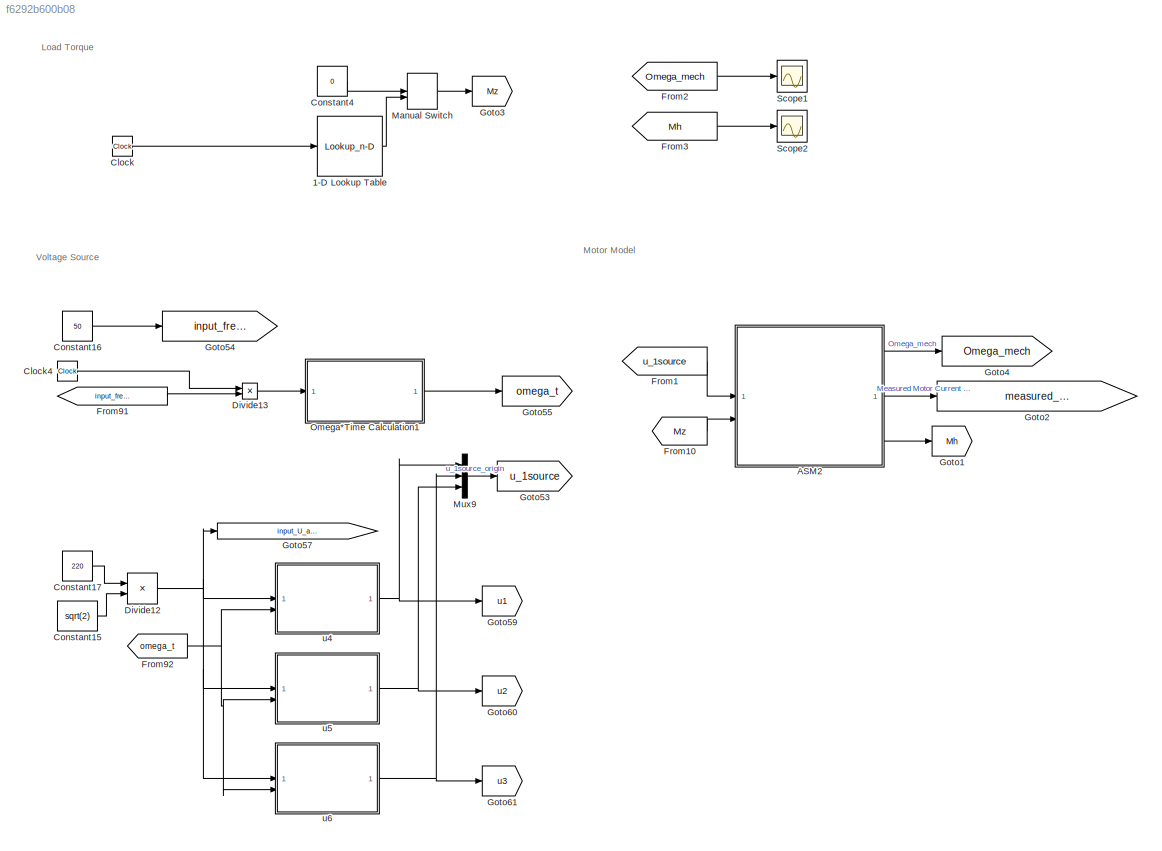
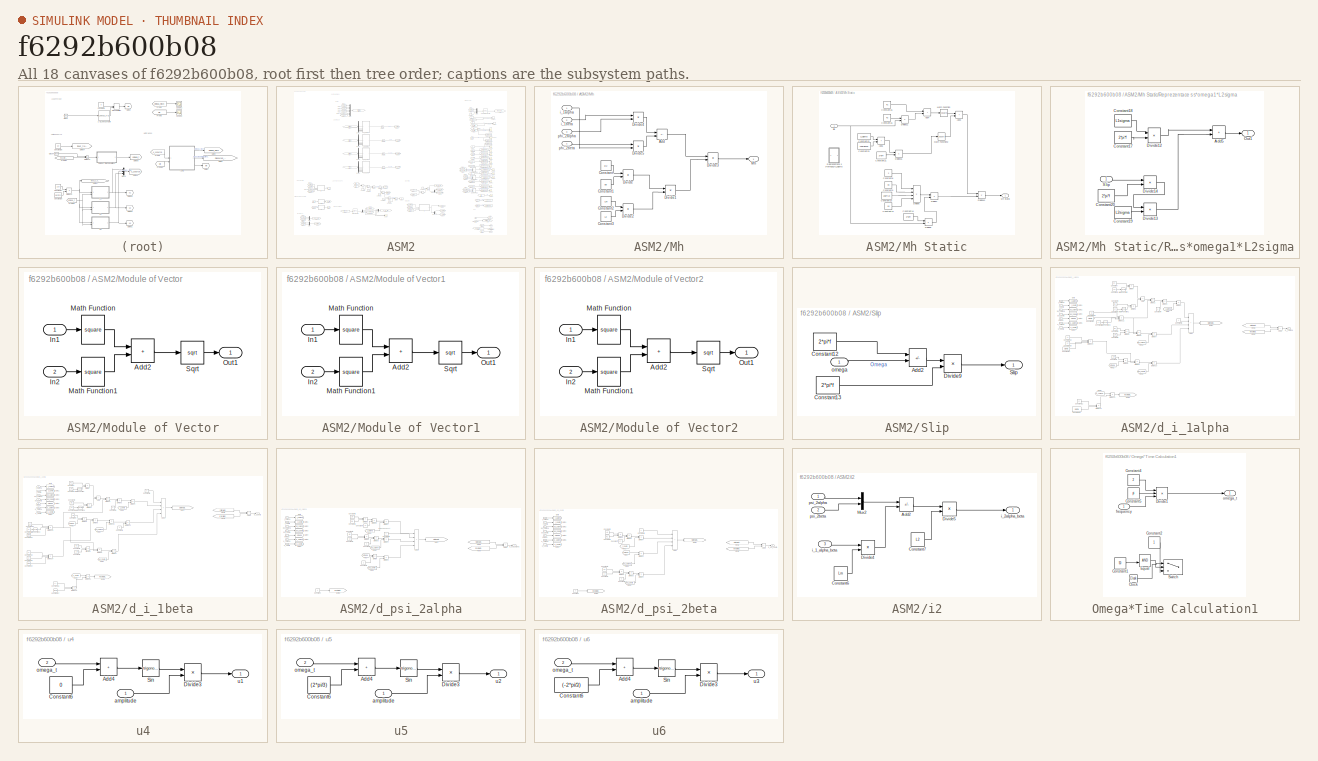
[diagram: thumbnail index - all 18 canvases of the model, root first then tree order]
MODEL slx_f6292b600b08
KIND model
CONFIG AbsTol = auto
CONFIG EnableMultiTasking = off
CONFIG FixedStep = 10e-6
CONFIG InitFcn = model_
CONFIG MaxStep = auto
CONFIG MinStep = auto
CONFIG RelTol = 1e-3
CONFIG SampleTimeConstraint = Unconstrained
CONFIG SolverName = ode4
CONFIG StartTime = 0.0
CONFIG StopTime = 1.3
BLOCK [Lookup_n-D] 1-D Lookup Table
  BreakpointsForDimension1 = [0;1.02;1.020000000009;3]
  InputPortMap = u0
  InternalRulePriority = Speed
  NumberOfTableDimensions = 1
  RndMeth = Simplest
  Table = [0;0;40;40]
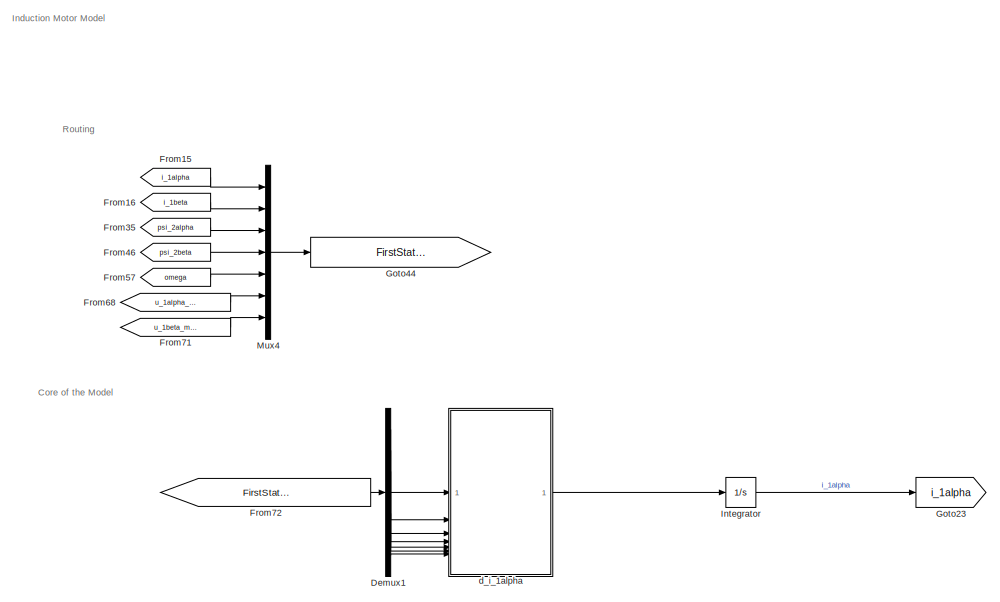
[diagram: ASM2 - part 1/7, top center region]
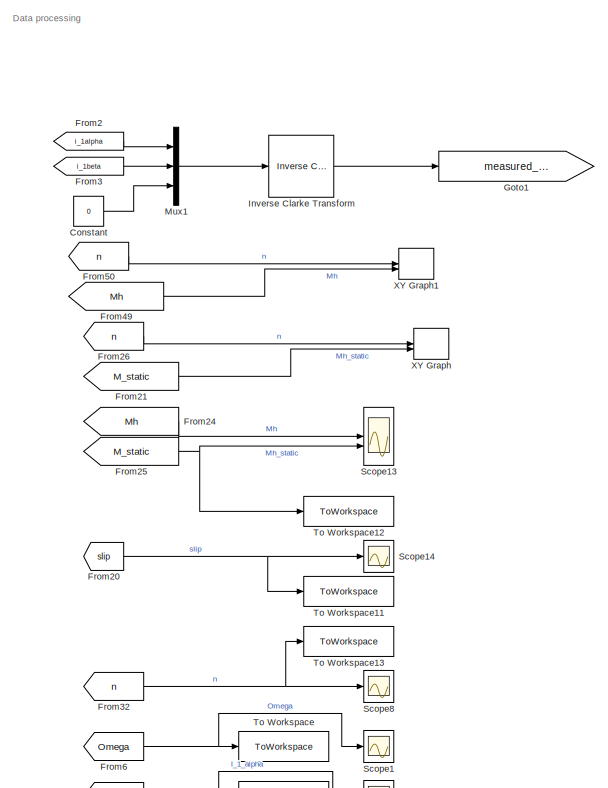
[diagram: ASM2 - part 2/7, top right region]
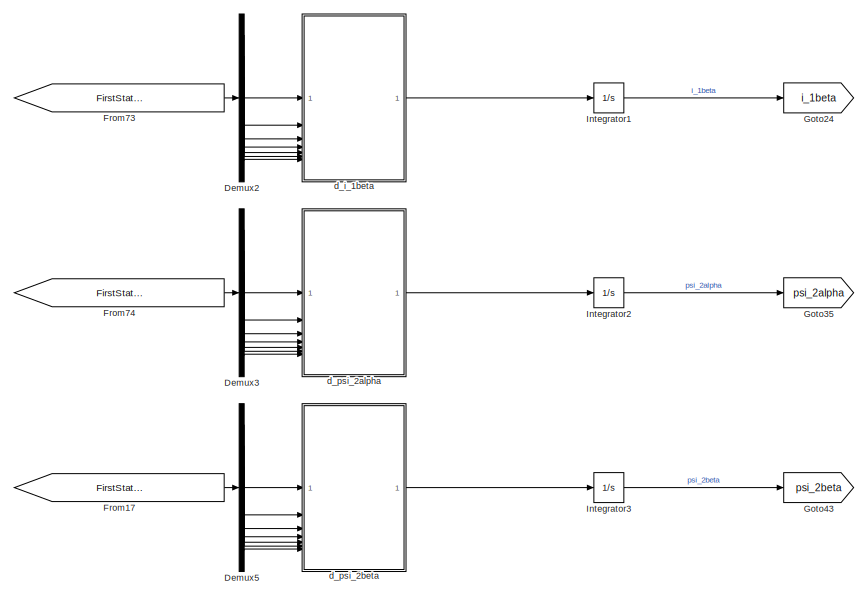
[diagram: ASM2 - part 3/7, central region]
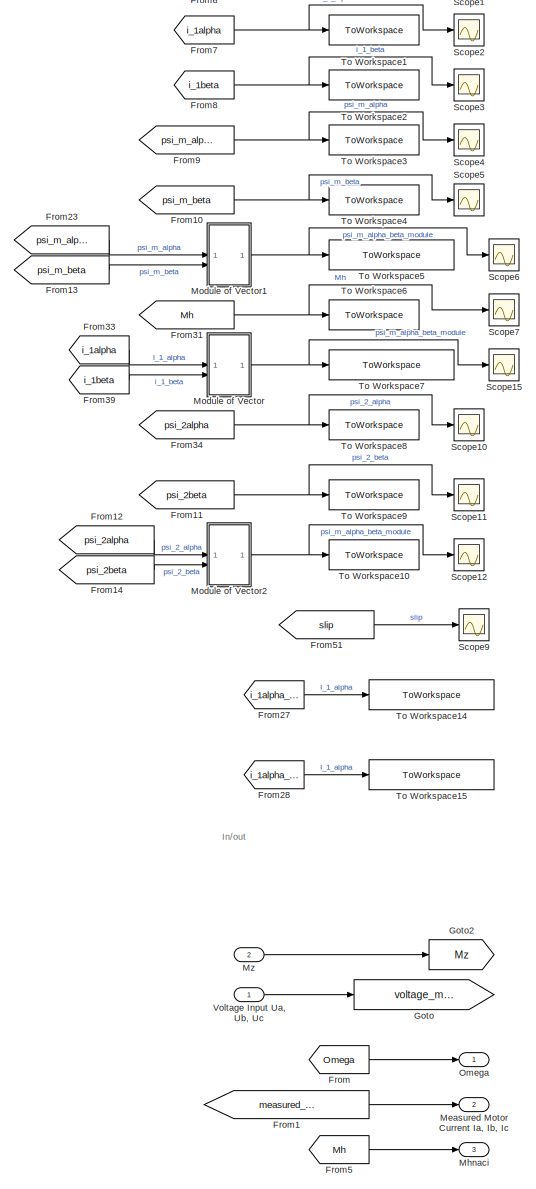
[diagram: ASM2 - part 4/7, bottom right region]
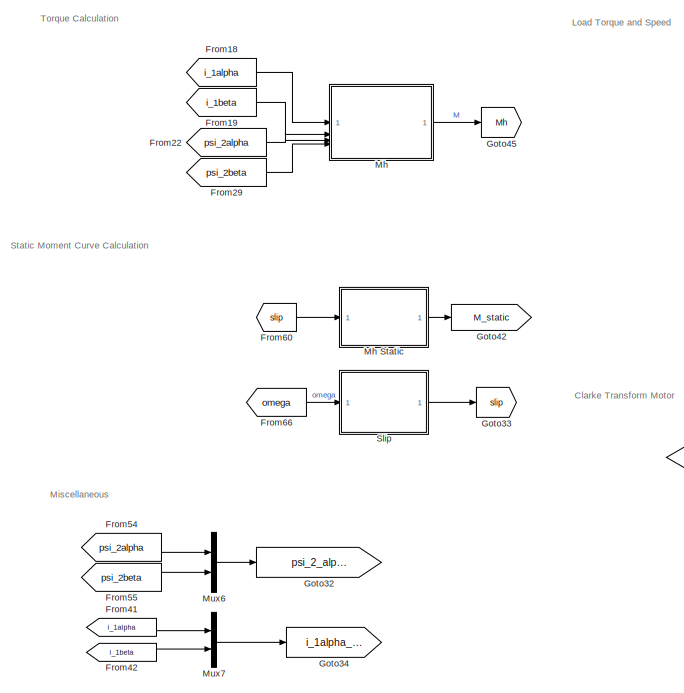
[diagram: ASM2 - part 5/7, bottom left region]
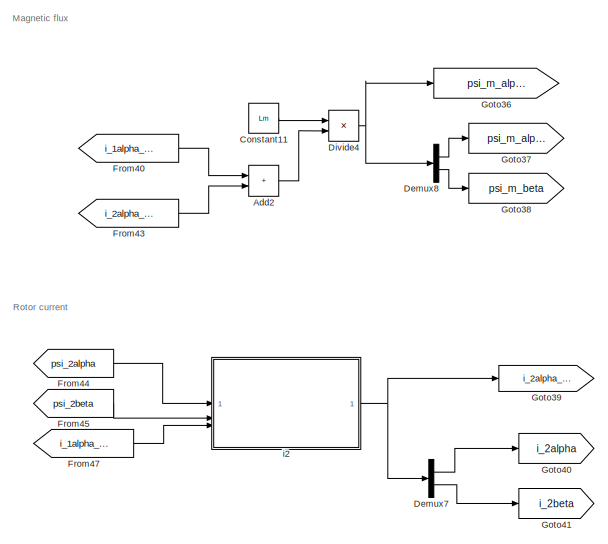
[diagram: ASM2 - part 6/7, bottom center region]
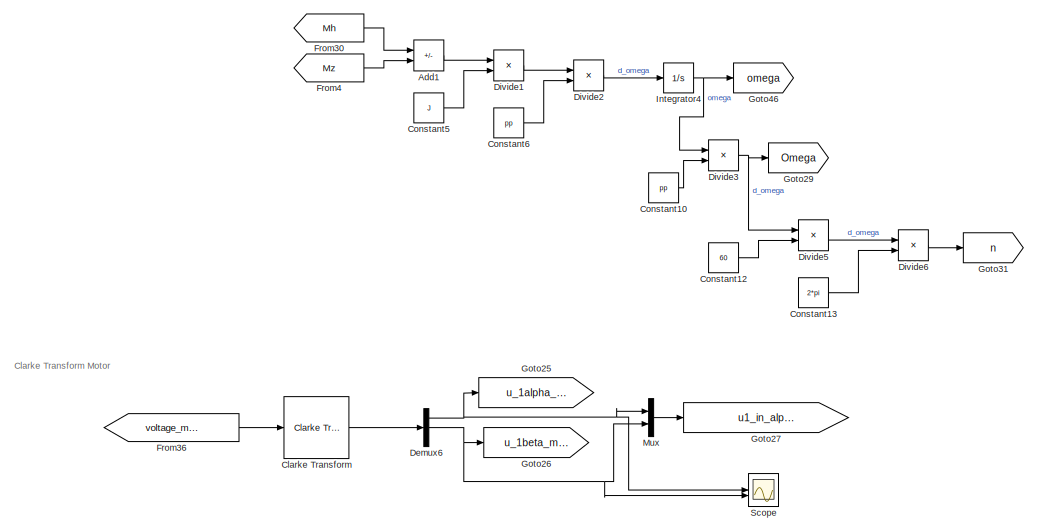
[diagram: ASM2 - part 7/7, bottom center region]
BLOCK [SubSystem] ASM2
BLOCK [Sum] ASM2/Add1
  IconShape = rectangular
  Inputs = +-
BLOCK [Sum] ASM2/Add2
  IconShape = rectangular
BLOCK [Reference] ASM2/Clarke Transform  REF=eeTransforms/Clarke Transform
  LibrarySourceBlock = ee_sl_lib/Mathematical\nTransforms/Clarke Transform
  SourceBlock = eeTransforms/Clarke Transform
  SourceType = Clarke Transform
BLOCK [Constant] ASM2/Constant
  Value = 0
BLOCK [Constant] ASM2/Constant10
  Value = pp
BLOCK [Constant] ASM2/Constant11
  Value = Lm
BLOCK [Constant] ASM2/Constant12
  Value = 60
BLOCK [Constant] ASM2/Constant13
  Value = 2*pi
BLOCK [Constant] ASM2/Constant5
  Value = J
BLOCK [Constant] ASM2/Constant6
  Value = pp
BLOCK [Demux] ASM2/Demux1
  Outputs = 7
BLOCK [Demux] ASM2/Demux2
  Outputs = 7
BLOCK [Demux] ASM2/Demux3
  Outputs = 7
BLOCK [Demux] ASM2/Demux5
  Outputs = 7
BLOCK [Demux] ASM2/Demux6
  Outputs = 3
BLOCK [Demux] ASM2/Demux7
  Outputs = 2
BLOCK [Demux] ASM2/Demux8
  Outputs = 2
BLOCK [Product] ASM2/Divide1
  Inputs = */
BLOCK [Product] ASM2/Divide2
  Inputs = **
BLOCK [Product] ASM2/Divide3
  Inputs = */
BLOCK [Product] ASM2/Divide4
  Inputs = **
BLOCK [Product] ASM2/Divide5
  Inputs = **
BLOCK [Product] ASM2/Divide6
  Inputs = */
BLOCK [From] ASM2/From
  GotoTag = Omega
BLOCK [From] ASM2/From1
  GotoTag = measured_motor_current
BLOCK [From] ASM2/From10
  GotoTag = psi_m_beta
BLOCK [From] ASM2/From11
  GotoTag = psi_2beta
BLOCK [From] ASM2/From12
  GotoTag = psi_2alpha
BLOCK [From] ASM2/From13
  GotoTag = psi_m_beta
BLOCK [From] ASM2/From14
  GotoTag = psi_2beta
BLOCK [From] ASM2/From15
  GotoTag = i_1alpha
BLOCK [From] ASM2/From16
  GotoTag = i_1beta
BLOCK [From] ASM2/From17
  GotoTag = FirstStateEquationVariables
BLOCK [From] ASM2/From18
  GotoTag = i_1alpha
BLOCK [From] ASM2/From19
  GotoTag = i_1beta
BLOCK [From] ASM2/From2
  GotoTag = i_1alpha
BLOCK [From] ASM2/From20
  GotoTag = slip
BLOCK [From] ASM2/From21
  GotoTag = M_static
BLOCK [From] ASM2/From22
  GotoTag = psi_2alpha
BLOCK [From] ASM2/From23
  GotoTag = psi_m_alpha
BLOCK [From] ASM2/From24
  GotoTag = Mh
BLOCK [From] ASM2/From25
  GotoTag = M_static
BLOCK [From] ASM2/From26
  GotoTag = n
BLOCK [From] ASM2/From27
  GotoTag = i_1alpha_beta
BLOCK [From] ASM2/From28
  GotoTag = i_1alpha_beta
BLOCK [From] ASM2/From29
  GotoTag = psi_2beta
BLOCK [From] ASM2/From3
  GotoTag = i_1beta
BLOCK [From] ASM2/From30
  GotoTag = Mh
BLOCK [From] ASM2/From31
  GotoTag = Mh
BLOCK [From] ASM2/From32
  GotoTag = n
BLOCK [From] ASM2/From33
  GotoTag = i_1alpha
BLOCK [From] ASM2/From34
  GotoTag = psi_2alpha
BLOCK [From] ASM2/From35
  GotoTag = psi_2alpha
BLOCK [From] ASM2/From36
  GotoTag = voltage_motor_input
BLOCK [From] ASM2/From39
  GotoTag = i_1beta
BLOCK [From] ASM2/From4
  GotoTag = Mz
BLOCK [From] ASM2/From40
  GotoTag = i_1alpha_beta
BLOCK [From] ASM2/From41
  GotoTag = i_1alpha
BLOCK [From] ASM2/From42
  GotoTag = i_1beta
BLOCK [From] ASM2/From43
  GotoTag = i_2alpha_beta
BLOCK [From] ASM2/From44
  GotoTag = psi_2alpha
BLOCK [From] ASM2/From45
  GotoTag = psi_2beta
BLOCK [From] ASM2/From46
  GotoTag = psi_2beta
BLOCK [From] ASM2/From47
  GotoTag = i_1alpha_beta
BLOCK [From] ASM2/From49
  GotoTag = Mh
BLOCK [From] ASM2/From5
  GotoTag = Mh
BLOCK [From] ASM2/From50
  GotoTag = n
BLOCK [From] ASM2/From51
  GotoTag = slip
BLOCK [From] ASM2/From54
  GotoTag = psi_2alpha
BLOCK [From] ASM2/From55
  GotoTag = psi_2beta
BLOCK [From] ASM2/From57
  GotoTag = omega
BLOCK [From] ASM2/From6
  GotoTag = Omega
BLOCK [From] ASM2/From60
  GotoTag = slip
BLOCK [From] ASM2/From66
  GotoTag = omega
BLOCK [From] ASM2/From68
  GotoTag = u_1alpha_motor
BLOCK [From] ASM2/From7
  GotoTag = i_1alpha
BLOCK [From] ASM2/From71
  GotoTag = u_1beta_motor
BLOCK [From] ASM2/From72
  GotoTag = FirstStateEquationVariables
BLOCK [From] ASM2/From73
  GotoTag = FirstStateEquationVariables
BLOCK [From] ASM2/From74
  GotoTag = FirstStateEquationVariables
BLOCK [From] ASM2/From8
  GotoTag = i_1beta
BLOCK [From] ASM2/From9
  GotoTag = psi_m_alpha
BLOCK [Goto] ASM2/Goto
  GotoTag = voltage_motor_input
BLOCK [Goto] ASM2/Goto1
  GotoTag = measured_motor_current
BLOCK [Goto] ASM2/Goto2
  GotoTag = Mz
BLOCK [Goto] ASM2/Goto23
  GotoTag = i_1alpha
BLOCK [Goto] ASM2/Goto24
  GotoTag = i_1beta
BLOCK [Goto] ASM2/Goto25
  GotoTag = u_1alpha_motor
BLOCK [Goto] ASM2/Goto26
  GotoTag = u_1beta_motor
BLOCK [Goto] ASM2/Goto27
  GotoTag = u1_in_alpha_beta_motor
BLOCK [Goto] ASM2/Goto29
  GotoTag = Omega
BLOCK [Goto] ASM2/Goto31
  GotoTag = n
BLOCK [Goto] ASM2/Goto32
  GotoTag = psi_2_alpha_beta
BLOCK [Goto] ASM2/Goto33
  GotoTag = slip
BLOCK [Goto] ASM2/Goto34
  GotoTag = i_1alpha_beta
BLOCK [Goto] ASM2/Goto35
  GotoTag = psi_2alpha
BLOCK [Goto] ASM2/Goto36
  GotoTag = psi_m_alpha_beta
BLOCK [Goto] ASM2/Goto37
  GotoTag = psi_m_alpha
BLOCK [Goto] ASM2/Goto38
  GotoTag = psi_m_beta
BLOCK [Goto] ASM2/Goto39
  GotoTag = i_2alpha_beta
BLOCK [Goto] ASM2/Goto40
  GotoTag = i_2alpha
BLOCK [Goto] ASM2/Goto41
  GotoTag = i_2beta
BLOCK [Goto] ASM2/Goto42
  GotoTag = M_static
BLOCK [Goto] ASM2/Goto43
  GotoTag = psi_2beta
BLOCK [Goto] ASM2/Goto44
  GotoTag = FirstStateEquationVariables
BLOCK [Goto] ASM2/Goto45
  GotoTag = Mh
BLOCK [Goto] ASM2/Goto46
  GotoTag = omega
BLOCK [Integrator] ASM2/Integrator
BLOCK [Integrator] ASM2/Integrator1
BLOCK [Integrator] ASM2/Integrator2
BLOCK [Integrator] ASM2/Integrator3
BLOCK [Integrator] ASM2/Integrator4
BLOCK [Reference] ASM2/Inverse Clarke Transform  REF=eeTransforms/Inverse
Clarke Transform
  LibrarySourceBlock = ee_sl_lib/Mathematical\nTransforms/Inverse\nClarke Transform
  SourceBlock = eeTransforms/Inverse\nClarke Transform
  SourceType = Inverse Clarke Transform
BLOCK [Outport] ASM2/Measured Motor Current Ia, Ib, Ic
  Port = 2
BLOCK [SubSystem] ASM2/Mh
BLOCK [SubSystem] ASM2/Mh Static
BLOCK [Sum] ASM2/Mh Static/Add3
  IconShape = rectangular
BLOCK [Sum] ASM2/Mh Static/Add4
  IconShape = rectangular
BLOCK [Sum] ASM2/Mh Static/Add6
  IconShape = rectangular
BLOCK [Constant] ASM2/Mh Static/Constant10
  Value = 230^(2)
BLOCK [Constant] ASM2/Mh Static/Constant11
  Value = pp
BLOCK [Constant] ASM2/Mh Static/Constant14
  Value = 2*pi*f
BLOCK [Constant] ASM2/Mh Static/Constant15
  Value = R1
BLOCK [Constant] ASM2/Mh Static/Constant16
  Value = R2
BLOCK [Constant] ASM2/Mh Static/Constant21
  Value = 2*pi*f
BLOCK [Constant] ASM2/Mh Static/Constant22
  Value = L1sigma
BLOCK [Constant] ASM2/Mh Static/Constant23
  Value = L2sigma
BLOCK [Constant] ASM2/Mh Static/Constant8
  Value = 3
BLOCK [Constant] ASM2/Mh Static/Constant9
  Value = R2
BLOCK [Product] ASM2/Mh Static/Divide10
  Inputs = /*
BLOCK [Product] ASM2/Mh Static/Divide11
  Inputs = */
BLOCK [Product] ASM2/Mh Static/Divide15
  Inputs = **
BLOCK [Product] ASM2/Mh Static/Divide6
  Inputs = ****
BLOCK [Product] ASM2/Mh Static/Divide7
  Inputs = */
BLOCK [Product] ASM2/Mh Static/Divide8
  Inputs = **
BLOCK [Math] ASM2/Mh Static/Math Function
  Operator = square
BLOCK [Math] ASM2/Mh Static/Math Function2
  Operator = square
BLOCK [Outport] ASM2/Mh Static/Mh Static
BLOCK [SubSystem] ASM2/Mh Static/Reprezentace s s*omega1*L2sigma
BLOCK [Sum] ASM2/Mh Static/Reprezentace s s*omega1*L2sigma/Add5
  IconShape = rectangular
BLOCK [Constant] ASM2/Mh Static/Reprezentace s s*omega1*L2sigma/Constant17
  Value = 2*pi*f
BLOCK [Constant] ASM2/Mh Static/Reprezentace s s*omega1*L2sigma/Constant18
  Value = L1sigma
BLOCK [Constant] ASM2/Mh Static/Reprezentace s s*omega1*L2sigma/Constant19
  Value = L2sigma
BLOCK [Constant] ASM2/Mh Static/Reprezentace s s*omega1*L2sigma/Constant20
  Value = 2*pi*f
BLOCK [Product] ASM2/Mh Static/Reprezentace s s*omega1*L2sigma/Divide12
  Inputs = **
BLOCK [Product] ASM2/Mh Static/Reprezentace s s*omega1*L2sigma/Divide13
  Inputs = **
BLOCK [Product] ASM2/Mh Static/Reprezentace s s*omega1*L2sigma/Divide14
  Inputs = **
BLOCK [Outport] ASM2/Mh Static/Reprezentace s s*omega1*L2sigma/Out1
BLOCK [Inport] ASM2/Mh Static/Reprezentace s s*omega1*L2sigma/Slip
BLOCK [Inport] ASM2/Mh Static/Slip
BLOCK [Sum] ASM2/Mh/Add
  IconShape = rectangular
  Inputs = +-
BLOCK [Constant] ASM2/Mh/Constant
  Value = 3/2
BLOCK [Constant] ASM2/Mh/Constant1
  Value = pp
BLOCK [Constant] ASM2/Mh/Constant2
  Value = Lm
BLOCK [Constant] ASM2/Mh/Constant3
  Value = L2
BLOCK [Product] ASM2/Mh/Divide
  Inputs = **
BLOCK [Product] ASM2/Mh/Divide1
  Inputs = **
BLOCK [Product] ASM2/Mh/Divide2
  Inputs = */
BLOCK [Product] ASM2/Mh/Divide3
  Inputs = **
BLOCK [Product] ASM2/Mh/Divide4
  Inputs = **
BLOCK [Product] ASM2/Mh/Divide5
  Inputs = **
BLOCK [Outport] ASM2/Mh/Mh
BLOCK [Inport] ASM2/Mh/i_1alpha
BLOCK [Inport] ASM2/Mh/i_1beta
  Port = 2
BLOCK [Inport] ASM2/Mh/phi_2alpha
  Port = 3
BLOCK [Inport] ASM2/Mh/phi_2beta
  Port = 4
BLOCK [Outport] ASM2/Mhnaci
  Port = 3
BLOCK [SubSystem] ASM2/Module of Vector
BLOCK [Sum] ASM2/Module of Vector/Add2
  IconShape = rectangular
BLOCK [Inport] ASM2/Module of Vector/In1
BLOCK [Inport] ASM2/Module of Vector/In2
  Port = 2
BLOCK [Math] ASM2/Module of Vector/Math Function
  Operator = square
BLOCK [Math] ASM2/Module of Vector/Math Function1
  Operator = square
BLOCK [Outport] ASM2/Module of Vector/Out1
BLOCK [Sqrt] ASM2/Module of Vector/Sqrt
BLOCK [SubSystem] ASM2/Module of Vector1
BLOCK [Sum] ASM2/Module of Vector1/Add2
  IconShape = rectangular
BLOCK [Inport] ASM2/Module of Vector1/In1
BLOCK [Inport] ASM2/Module of Vector1/In2
  Port = 2
BLOCK [Math] ASM2/Module of Vector1/Math Function
  Operator = square
BLOCK [Math] ASM2/Module of Vector1/Math Function1
  Operator = square
BLOCK [Outport] ASM2/Module of Vector1/Out1
BLOCK [Sqrt] ASM2/Module of Vector1/Sqrt
BLOCK [SubSystem] ASM2/Module of Vector2
BLOCK [Sum] ASM2/Module of Vector2/Add2
  IconShape = rectangular
BLOCK [Inport] ASM2/Module of Vector2/In1
BLOCK [Inport] ASM2/Module of Vector2/In2
  Port = 2
BLOCK [Math] ASM2/Module of Vector2/Math Function
  Operator = square
BLOCK [Math] ASM2/Module of Vector2/Math Function1
  Operator = square
BLOCK [Outport] ASM2/Module of Vector2/Out1
BLOCK [Sqrt] ASM2/Module of Vector2/Sqrt
BLOCK [Mux] ASM2/Mux
  DisplayOption = bar
  Inputs = 2
BLOCK [Mux] ASM2/Mux1
  DisplayOption = bar
  Inputs = 3
BLOCK [Mux] ASM2/Mux4
  DisplayOption = bar
  Inputs = 7
BLOCK [Mux] ASM2/Mux6
  DisplayOption = bar
  Inputs = 2
BLOCK [Mux] ASM2/Mux7
  DisplayOption = bar
  Inputs = 2
BLOCK [Inport] ASM2/Mz
  Port = 2
BLOCK [Outport] ASM2/Omega
BLOCK [Scope] ASM2/Scope
  Floating = off
  NumInputPorts = 2
  ScopeSpecificationString = Simulink.scopes.TimeScopeBlockCfg('CurrentConfiguration', extmgr.ConfigurationSet(extmgr.Configuration('Core','General UI',true),extmgr.Configuration('Core','Source UI',true),extmgr.Configuration('Sources','WiredSimulink',true,'DataLoggingVariableName','ScopeData2'),extmgr.Configuration('Visuals','Time Domain',true,'SerializedDisplays',{struct('MinYLimReal','-388.90873','MaxYLimReal','388.90873','...<+2066ch>
BLOCK [Scope] ASM2/Scope1
  Floating = off
  NumInputPorts = 1
  ScopeSpecificationString = Simulink.scopes.TimeScopeBlockCfg('CurrentConfiguration', extmgr.ConfigurationSet(extmgr.Configuration('Core','General UI',true),extmgr.Configuration('Core','Source UI',true),extmgr.Configuration('Sources','WiredSimulink',true,'DataLoggingVariableName','ScopeData3'),extmgr.Configuration('Visuals','Time Domain',true,'SerializedDisplays',{struct('MinYLimReal','-19.69721','MaxYLimReal','177.27489','Y...<+1448ch>
BLOCK [Scope] ASM2/Scope10
  Floating = off
  NumInputPorts = 1
  ScopeSpecificationString = Simulink.scopes.TimeScopeBlockCfg('CurrentConfiguration', extmgr.ConfigurationSet(extmgr.Configuration('Core','General UI',true),extmgr.Configuration('Core','Source UI',true),extmgr.Configuration('Sources','WiredSimulink',true,'DataLoggingVariableName','ScopeData4'),extmgr.Configuration('Visuals','Time Domain',true,'SerializedDisplays',{struct('MinYLimReal','-1.26191','MaxYLimReal','1.26156','YLab...<+1370ch>
BLOCK [Scope] ASM2/Scope11
  Floating = off
  NumInputPorts = 1
  ScopeSpecificationString = Simulink.scopes.TimeScopeBlockCfg('CurrentConfiguration', extmgr.ConfigurationSet(extmgr.Configuration('Core','General UI',true),extmgr.Configuration('Core','Source UI',true),extmgr.Configuration('Sources','WiredSimulink',true,'DataLoggingVariableName','ScopeData5'),extmgr.Configuration('Visuals','Time Domain',true,'SerializedDisplays',{struct('MinYLimReal','-1.26139','MaxYLimReal','1.26202','YLab...<+1369ch>
BLOCK [Scope] ASM2/Scope12
  Floating = off
  NumInputPorts = 1
  ScopeSpecificationString = Simulink.scopes.TimeScopeBlockCfg('CurrentConfiguration', extmgr.ConfigurationSet(extmgr.Configuration('Core','General UI',true),extmgr.Configuration('Core','Source UI',true),extmgr.Configuration('Sources','WiredSimulink',true,'DataLoggingVariableName','ScopeData6'),extmgr.Configuration('Visuals','Time Domain',true,'SerializedDisplays',{struct('MinYLimReal','-0.12621','MaxYLimReal','1.13591','YLab...<+1431ch>
BLOCK [Scope] ASM2/Scope13
  Floating = off
  NumInputPorts = 2
  ScopeSpecificationString = Simulink.scopes.TimeScopeBlockCfg('CurrentConfiguration', extmgr.ConfigurationSet(extmgr.Configuration('Core','General UI',true),extmgr.Configuration('Core','Source UI',true),extmgr.Configuration('Sources','WiredSimulink',true,'DataLoggingVariableName','ScopeData7'),extmgr.Configuration('Visuals','Time Domain',true,'SerializedDisplays',{struct('MinYLimReal','-168.95534','MaxYLimReal','340.39409','...<+2093ch>
BLOCK [Scope] ASM2/Scope14
  Floating = off
  NumInputPorts = 1
  ScopeSpecificationString = Simulink.scopes.TimeScopeBlockCfg('CurrentConfiguration', extmgr.ConfigurationSet(extmgr.Configuration('Core','General UI',true),extmgr.Configuration('Core','Source UI',true),extmgr.Configuration('Sources','WiredSimulink',true,'DataLoggingVariableName','ScopeData8'),extmgr.Configuration('Visuals','Time Domain',true),extmgr.Configuration('Tools','Plot Navigation',true),extmgr.Configuration('Tools',...<+40ch>
BLOCK [Scope] ASM2/Scope15
  Floating = off
  NumInputPorts = 1
  ScopeSpecificationString = Simulink.scopes.TimeScopeBlockCfg('CurrentConfiguration', extmgr.ConfigurationSet(extmgr.Configuration('Core','General UI',true),extmgr.Configuration('Core','Source UI',true),extmgr.Configuration('Sources','WiredSimulink',true,'DataLoggingVariableName','ScopeData9'),extmgr.Configuration('Visuals','Time Domain',true,'SerializedDisplays',{struct('MinYLimReal','-14.5556','MaxYLimReal','291.24811','YL...<+1464ch>
BLOCK [Scope] ASM2/Scope2
  Floating = off
  NumInputPorts = 1
  ScopeSpecificationString = Simulink.scopes.TimeScopeBlockCfg('CurrentConfiguration', extmgr.ConfigurationSet(extmgr.Configuration('Core','General UI',true),extmgr.Configuration('Core','Source UI',true),extmgr.Configuration('Sources','WiredSimulink',true,'DataLoggingVariableName','ScopeData10'),extmgr.Configuration('Visuals','Time Domain',true,'SerializedDisplays',{struct('MinYLimReal','-290.57848','MaxYLimReal','341.83817',...<+1455ch>
BLOCK [Scope] ASM2/Scope3
  Floating = off
  NumInputPorts = 1
  ScopeSpecificationString = Simulink.scopes.TimeScopeBlockCfg('CurrentConfiguration', extmgr.ConfigurationSet(extmgr.Configuration('Core','General UI',true),extmgr.Configuration('Core','Source UI',true),extmgr.Configuration('Sources','WiredSimulink',true,'DataLoggingVariableName','ScopeData11'),extmgr.Configuration('Visuals','Time Domain',true,'SerializedDisplays',{struct('MinYLimReal','-109.46548','MaxYLimReal','113.10964',...<+1382ch>
BLOCK [Scope] ASM2/Scope4
  Floating = off
  NumInputPorts = 1
  ScopeSpecificationString = Simulink.scopes.TimeScopeBlockCfg('CurrentConfiguration', extmgr.ConfigurationSet(extmgr.Configuration('Core','General UI',true),extmgr.Configuration('Core','Source UI',true),extmgr.Configuration('Sources','WiredSimulink',true,'DataLoggingVariableName','ScopeData12'),extmgr.Configuration('Visuals','Time Domain',true,'SerializedDisplays',{struct('MinYLimReal','-1.26429','MaxYLimReal','1.26371','YLa...<+1371ch>
BLOCK [Scope] ASM2/Scope5
  Floating = off
  NumInputPorts = 1
  ScopeSpecificationString = Simulink.scopes.TimeScopeBlockCfg('CurrentConfiguration', extmgr.ConfigurationSet(extmgr.Configuration('Core','General UI',true),extmgr.Configuration('Core','Source UI',true),extmgr.Configuration('Sources','WiredSimulink',true,'DataLoggingVariableName','ScopeData13'),extmgr.Configuration('Visuals','Time Domain',true),extmgr.Configuration('Tools','Plot Navigation',true),extmgr.Configuration('Tools'...<+41ch>
BLOCK [Scope] ASM2/Scope6
  Floating = off
  NumInputPorts = 1
  ScopeSpecificationString = Simulink.scopes.TimeScopeBlockCfg('CurrentConfiguration', extmgr.ConfigurationSet(extmgr.Configuration('Core','General UI',true),extmgr.Configuration('Core','Source UI',true),extmgr.Configuration('Sources','WiredSimulink',true,'DataLoggingVariableName','ScopeData14'),extmgr.Configuration('Visuals','Time Domain',true,'SerializedDisplays',{struct('MinYLimReal','-0.0851','MaxYLimReal','0.76589','YLab...<+1411ch>
BLOCK [Scope] ASM2/Scope7
  Floating = off
  NumInputPorts = 1
  ScopeSpecificationString = Simulink.scopes.TimeScopeBlockCfg('CurrentConfiguration', extmgr.ConfigurationSet(extmgr.Configuration('Core','General UI',true),extmgr.Configuration('Core','Source UI',true),extmgr.Configuration('Sources','WiredSimulink',true,'DataLoggingVariableName','ScopeData15'),extmgr.Configuration('Visuals','Time Domain',true,'SerializedDisplays',{struct('MinYLimReal','-184.48728','MaxYLimReal','371.80469',...<+1425ch>
BLOCK [Scope] ASM2/Scope8
  Floating = off
  NumInputPorts = 1
  ScopeSpecificationString = Simulink.scopes.TimeScopeBlockCfg('CurrentConfiguration', extmgr.ConfigurationSet(extmgr.Configuration('Core','General UI',true),extmgr.Configuration('Core','Source UI',true),extmgr.Configuration('Sources','WiredSimulink',true,'DataLoggingVariableName','ScopeData16'),extmgr.Configuration('Visuals','Time Domain',true,'SerializedDisplays',{struct('MinYLimReal','-189.74271','MaxYLimReal','1707.68438'...<+1451ch>
BLOCK [Scope] ASM2/Scope9
  Floating = off
  NumInputPorts = 1
  ScopeSpecificationString = Simulink.scopes.TimeScopeBlockCfg('CurrentConfiguration', extmgr.ConfigurationSet(extmgr.Configuration('Core','General UI',true),extmgr.Configuration('Core','Source UI',true),extmgr.Configuration('Sources','WiredSimulink',true,'DataLoggingVariableName','ScopeData17'),extmgr.Configuration('Visuals','Time Domain',true,'SerializedDisplays',{struct('MinYLimReal','-0.14054','MaxYLimReal','1.12673','YLa...<+1436ch>
BLOCK [SubSystem] ASM2/Slip
BLOCK [Sum] ASM2/Slip/Add2
  IconShape = rectangular
  Inputs = +-
BLOCK [Constant] ASM2/Slip/Constant12
  Value = 2*pi*f
BLOCK [Constant] ASM2/Slip/Constant13
  Value = 2*pi*f
BLOCK [Product] ASM2/Slip/Divide9
  Inputs = */
BLOCK [Outport] ASM2/Slip/Slip
BLOCK [Inport] ASM2/Slip/omega
BLOCK [ToWorkspace] ASM2/To Workspace
  FixptAsFi = on
  MaxDataPoints = inf
  SampleTime = -1
  SaveFormat = Timeseries
  VariableName = Omega
BLOCK [ToWorkspace] ASM2/To Workspace1
  FixptAsFi = on
  MaxDataPoints = inf
  SampleTime = -1
  SaveFormat = Timeseries
  VariableName = i_1alpha
BLOCK [ToWorkspace] ASM2/To Workspace10
  FixptAsFi = on
  MaxDataPoints = inf
  SampleTime = -1
  SaveFormat = Timeseries
  VariableName = psi_2_alpha_beta_module
BLOCK [ToWorkspace] ASM2/To Workspace11
  FixptAsFi = on
  MaxDataPoints = inf
  SampleTime = -1
  SaveFormat = Timeseries
  VariableName = slip
BLOCK [ToWorkspace] ASM2/To Workspace12
  FixptAsFi = on
  MaxDataPoints = inf
  SampleTime = -1
  SaveFormat = Timeseries
  VariableName = mh_static
BLOCK [ToWorkspace] ASM2/To Workspace13
  FixptAsFi = on
  MaxDataPoints = inf
  SampleTime = -1
  SaveFormat = Timeseries
  VariableName = n
BLOCK [ToWorkspace] ASM2/To Workspace14
  FixptAsFi = on
  MaxDataPoints = inf
  SampleTime = -1
  SaveFormat = Timeseries
  VariableName = i_1alpha_1beta
BLOCK [ToWorkspace] ASM2/To Workspace15
  FixptAsFi = on
  MaxDataPoints = inf
  SampleTime = -1
  SaveFormat = Timeseries
  VariableName = Psi_2_alpha_beta
BLOCK [ToWorkspace] ASM2/To Workspace2
  FixptAsFi = on
  MaxDataPoints = inf
  SampleTime = -1
  SaveFormat = Timeseries
  VariableName = i_1beta
BLOCK [ToWorkspace] ASM2/To Workspace3
  FixptAsFi = on
  MaxDataPoints = inf
  SampleTime = -1
  SaveFormat = Timeseries
  VariableName = psi_m_alpha
BLOCK [ToWorkspace] ASM2/To Workspace4
  FixptAsFi = on
  MaxDataPoints = inf
  SampleTime = -1
  SaveFormat = Timeseries
  VariableName = psi_m_beta
BLOCK [ToWorkspace] ASM2/To Workspace5
  FixptAsFi = on
  MaxDataPoints = inf
  SampleTime = -1
  SaveFormat = Timeseries
  VariableName = psi_m_alpha_beta_module
BLOCK [ToWorkspace] ASM2/To Workspace6
  FixptAsFi = on
  MaxDataPoints = inf
  SampleTime = -1
  SaveFormat = Timeseries
  VariableName = Mh
BLOCK [ToWorkspace] ASM2/To Workspace7
  FixptAsFi = on
  MaxDataPoints = inf
  SampleTime = -1
  SaveFormat = Timeseries
  VariableName = i_1_alpha_beta_module
BLOCK [ToWorkspace] ASM2/To Workspace8
  FixptAsFi = on
  MaxDataPoints = inf
  SampleTime = -1
  SaveFormat = Timeseries
  VariableName = psi_2_alpha
BLOCK [ToWorkspace] ASM2/To Workspace9
  FixptAsFi = on
  MaxDataPoints = inf
  SampleTime = -1
  SaveFormat = Timeseries
  VariableName = psi_2_beta
BLOCK [Inport] ASM2/Voltage Input Ua, Ub, Uc
BLOCK [Record] ASM2/XY Graph
  CompatibilityTag = XY
  FileSettingsInternal = {"entries":[{"content":{"excelSettings":{"content":{},"type":"Streamout.ExcelSettings"}},"type":"Streamout.FileSettingStorage","uuid":""}],"packageUris":["http:\/\/schema.mathworks.com\/mf0\/streamout_blocks\/R2020a"],"version":"1.0"}
  Layout = [1 1]
  SignalsInternal = {"entries":[{"content":{"signals":[{"content":{"blockPath":[],"dimensions":[1],"domain":"","lineColor":"#a2142f","plots":[1],"port":1,"signalID":8,"signalName":"n"},"type":"RecordBlkView.Signal","uuid":""},{"content":{"blockPath":[],"dimensions":[1],"domain":"","lineColor":"#139fff","plots":[1],"port":2,"signalID":11,"signalName":"Mh_static"},"type":"RecordBlkView.Signal","uuid":""}]},"type":"Reco...<+131ch>
  VisualizationBindings = {"xyplotplugin":{"info":[{"series":[{"bindingParametersList":[{"parameter":"X-Axis","signalID":8,"signalName":"n"},{"parameter":"Y-Axis","signalID":11,"signalName":"Mh_static"}],"seriesID":39253}],"subplotID":1}]}}
BLOCK [Record] ASM2/XY Graph1
  CompatibilityTag = XY
  FileSettingsInternal = {"entries":[{"content":{"excelSettings":{"content":{},"type":"Streamout.ExcelSettings"}},"type":"Streamout.FileSettingStorage","uuid":""}],"packageUris":["http:\/\/schema.mathworks.com\/mf0\/streamout_blocks\/R2020a"],"version":"1.0"}
  Layout = [1 1]
  SignalsInternal = {"entries":[{"content":{"signals":[{"content":{"blockPath":[],"dimensions":[1],"domain":"","lineColor":"#a2142f","plots":[1],"port":1,"signalID":16,"signalName":"n"},"type":"RecordBlkView.Signal","uuid":""},{"content":{"blockPath":[],"dimensions":[1],"domain":"","lineColor":"#139fff","plots":[1],"port":2,"signalID":19,"signalName":"Mh"},"type":"RecordBlkView.Signal","uuid":""}]},"type":"RecordBlkV...<+125ch>
  VisualizationBindings = {"xyplotplugin":{"info":[{"series":[{"bindingParametersList":[{"parameter":"X-Axis","signalID":16,"signalName":"n"},{"parameter":"Y-Axis","signalID":19,"signalName":"Mh"}],"seriesID":36032}],"subplotID":1}]}}
BLOCK [SubSystem] ASM2/d_i_1alpha
BLOCK [Sum] ASM2/d_i_1alpha/Add
  IconShape = rectangular
BLOCK [Sum] ASM2/d_i_1alpha/Add1
  IconShape = rectangular
  Inputs = ++++
BLOCK [Sum] ASM2/d_i_1alpha/Add2
  IconShape = rectangular
BLOCK [Constant] ASM2/d_i_1alpha/Constant
  Value = R2
BLOCK [Constant] ASM2/d_i_1alpha/Constant1
  Value = Lm
BLOCK [Constant] ASM2/d_i_1alpha/Constant10
  Value = L1
BLOCK [Constant] ASM2/d_i_1alpha/Constant11
  Value = sigma
BLOCK [Constant] ASM2/d_i_1alpha/Constant12
  Value = L1
BLOCK [Constant] ASM2/d_i_1alpha/Constant13
  Value = L1
BLOCK [Constant] ASM2/d_i_1alpha/Constant14
  Value = sigma
BLOCK [Constant] ASM2/d_i_1alpha/Constant15
  Value = L2
BLOCK [Constant] ASM2/d_i_1alpha/Constant16
  Value = sigma
BLOCK [Constant] ASM2/d_i_1alpha/Constant2
  Value = L2
BLOCK [Constant] ASM2/d_i_1alpha/Constant3
  Value = R1
BLOCK [Constant] ASM2/d_i_1alpha/Constant4
  Value = -1
BLOCK [Constant] ASM2/d_i_1alpha/Constant5
  Value = R2
BLOCK [Constant] ASM2/d_i_1alpha/Constant6
  Value = Lm
BLOCK [Constant] ASM2/d_i_1alpha/Constant7
  Value = Lm
BLOCK [Constant] ASM2/d_i_1alpha/Constant8
  Value = 0
BLOCK [Constant] ASM2/d_i_1alpha/Constant9
  Value = L2
BLOCK [Product] ASM2/d_i_1alpha/Divide
  Inputs = **
BLOCK [Product] ASM2/d_i_1alpha/Divide1
  Inputs = **
BLOCK [Product] ASM2/d_i_1alpha/Divide10
  Inputs = **
BLOCK [Product] ASM2/d_i_1alpha/Divide11
  Inputs = */
BLOCK [Product] ASM2/d_i_1alpha/Divide12
  Inputs = ***
BLOCK [Product] ASM2/d_i_1alpha/Divide13
  Inputs = **
BLOCK [Product] ASM2/d_i_1alpha/Divide14
  Inputs = ***
BLOCK [Product] ASM2/d_i_1alpha/Divide2
  Inputs = */
BLOCK [Product] ASM2/d_i_1alpha/Divide3
  Inputs = **
BLOCK [Product] ASM2/d_i_1alpha/Divide4
  Inputs = **
BLOCK [Product] ASM2/d_i_1alpha/Divide5
  Inputs = **
BLOCK [Product] ASM2/d_i_1alpha/Divide6
  Inputs = */
BLOCK [Product] ASM2/d_i_1alpha/Divide7
  Inputs = **
BLOCK [Product] ASM2/d_i_1alpha/Divide8
  Inputs = **
BLOCK [Product] ASM2/d_i_1alpha/Divide9
  Inputs = */
BLOCK [From] ASM2/d_i_1alpha/From
  GotoTag = i_1alpha
BLOCK [From] ASM2/d_i_1alpha/From1
  GotoTag = psi_2alpha
BLOCK [From] ASM2/d_i_1alpha/From2
  GotoTag = omega
BLOCK [From] ASM2/d_i_1alpha/From3
  GotoTag = psi_2beta
BLOCK [From] ASM2/d_i_1alpha/From4
  GotoTag = u_1alpha
BLOCK [From] ASM2/d_i_1alpha/From5
  GotoTag = StateMatrix_x_StateVector
BLOCK [From] ASM2/d_i_1alpha/From6
  GotoTag = InputMatrix_x_Input
BLOCK [Goto] ASM2/d_i_1alpha/Goto
  GotoTag = i_1alpha
BLOCK [Goto] ASM2/d_i_1alpha/Goto1
  GotoTag = i_1beta
BLOCK [Goto] ASM2/d_i_1alpha/Goto2
  GotoTag = psi_2alpha
BLOCK [Goto] ASM2/d_i_1alpha/Goto3
  GotoTag = psi_2beta
BLOCK [Goto] ASM2/d_i_1alpha/Goto4
  GotoTag = omega
BLOCK [Goto] ASM2/d_i_1alpha/Goto5
  GotoTag = u_1alpha
BLOCK [Goto] ASM2/d_i_1alpha/Goto6
  GotoTag = u_1beta
BLOCK [Goto] ASM2/d_i_1alpha/Goto7
  GotoTag = StateMatrix_x_StateVector
BLOCK [Goto] ASM2/d_i_1alpha/Goto8
  GotoTag = InputMatrix_x_Input
BLOCK [Math] ASM2/d_i_1alpha/Math Function
  Operator = square
BLOCK [Math] ASM2/d_i_1alpha/Math Function1
  Operator = square
BLOCK [Math] ASM2/d_i_1alpha/Math Function2
  Operator = square
BLOCK [Outport] ASM2/d_i_1alpha/d_i_1alpha
BLOCK [Inport] ASM2/d_i_1alpha/i_1alpha
BLOCK [Inport] ASM2/d_i_1alpha/i_1beta
  Port = 2
BLOCK [Inport] ASM2/d_i_1alpha/omega
  Port = 5
BLOCK [Inport] ASM2/d_i_1alpha/psi_2alpha
  Port = 3
BLOCK [Inport] ASM2/d_i_1alpha/psi_2beta
  Port = 4
BLOCK [Inport] ASM2/d_i_1alpha/u_1alpha
  Port = 6
BLOCK [Inport] ASM2/d_i_1alpha/u_1beta
  Port = 7
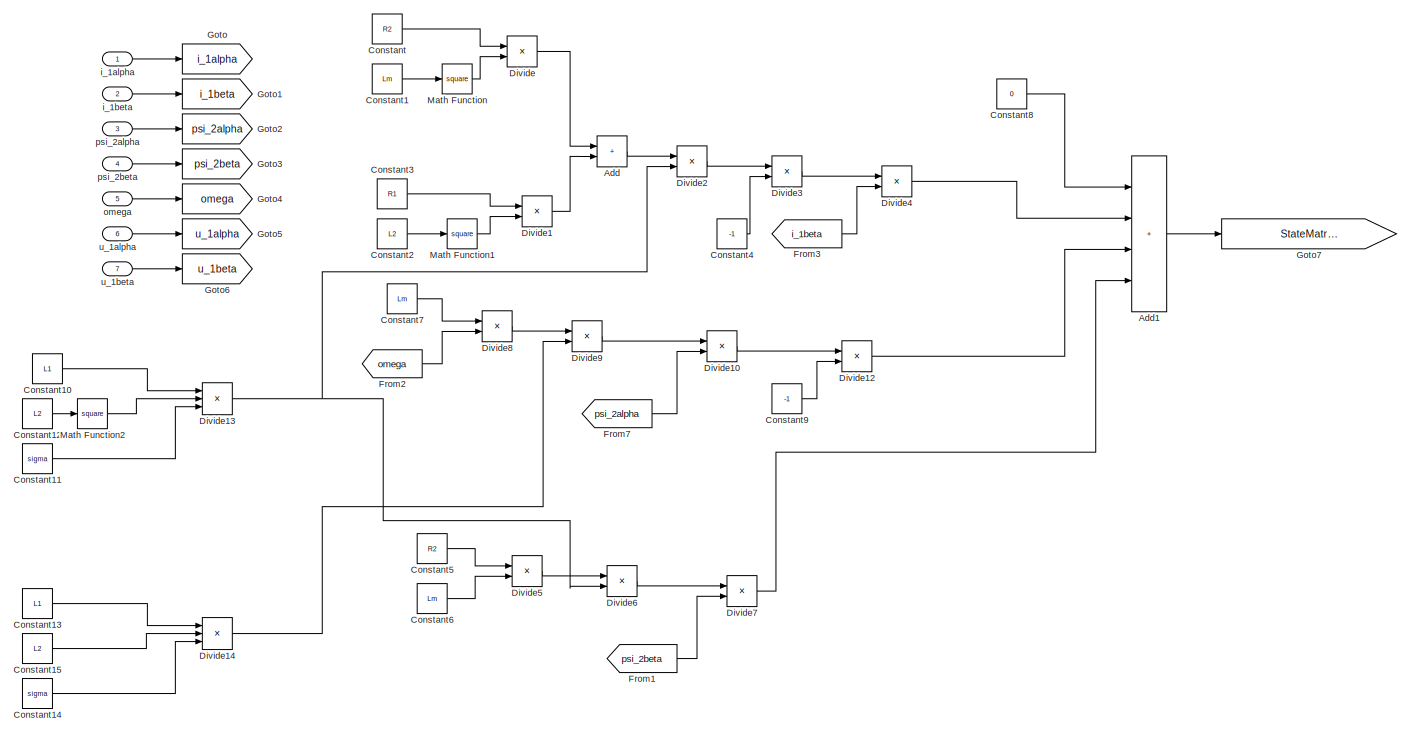
[diagram: ASM2/d_i_1beta - part 1/3, center side, full height]
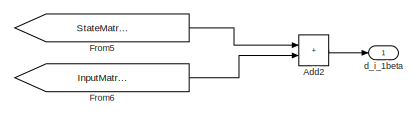
[diagram: ASM2/d_i_1beta - part 2/3, top right region]
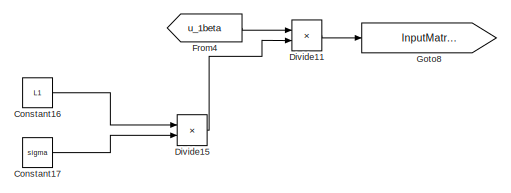
[diagram: ASM2/d_i_1beta - part 3/3, bottom left region]
BLOCK [SubSystem] ASM2/d_i_1beta
BLOCK [Sum] ASM2/d_i_1beta/Add
  IconShape = rectangular
BLOCK [Sum] ASM2/d_i_1beta/Add1
  IconShape = rectangular
  Inputs = ++++
BLOCK [Sum] ASM2/d_i_1beta/Add2
  IconShape = rectangular
BLOCK [Constant] ASM2/d_i_1beta/Constant
  Value = R2
BLOCK [Constant] ASM2/d_i_1beta/Constant1
  Value = Lm
BLOCK [Constant] ASM2/d_i_1beta/Constant10
  Value = L1
BLOCK [Constant] ASM2/d_i_1beta/Constant11
  Value = sigma
BLOCK [Constant] ASM2/d_i_1beta/Constant12
  Value = L2
BLOCK [Constant] ASM2/d_i_1beta/Constant13
  Value = L1
BLOCK [Constant] ASM2/d_i_1beta/Constant14
  Value = sigma
BLOCK [Constant] ASM2/d_i_1beta/Constant15
  Value = L2
BLOCK [Constant] ASM2/d_i_1beta/Constant16
  Value = L1
BLOCK [Constant] ASM2/d_i_1beta/Constant17
  Value = sigma
BLOCK [Constant] ASM2/d_i_1beta/Constant2
  Value = L2
BLOCK [Constant] ASM2/d_i_1beta/Constant3
  Value = R1
BLOCK [Constant] ASM2/d_i_1beta/Constant4
  Value = -1
BLOCK [Constant] ASM2/d_i_1beta/Constant5
  Value = R2
BLOCK [Constant] ASM2/d_i_1beta/Constant6
  Value = Lm
BLOCK [Constant] ASM2/d_i_1beta/Constant7
  Value = Lm
BLOCK [Constant] ASM2/d_i_1beta/Constant8
  Value = 0
BLOCK [Constant] ASM2/d_i_1beta/Constant9
  Value = -1
BLOCK [Product] ASM2/d_i_1beta/Divide
  Inputs = **
BLOCK [Product] ASM2/d_i_1beta/Divide1
  Inputs = **
BLOCK [Product] ASM2/d_i_1beta/Divide10
  Inputs = **
BLOCK [Product] ASM2/d_i_1beta/Divide11
  Inputs = */
BLOCK [Product] ASM2/d_i_1beta/Divide12
  Inputs = **
BLOCK [Product] ASM2/d_i_1beta/Divide13
  Inputs = ***
BLOCK [Product] ASM2/d_i_1beta/Divide14
  Inputs = ***
BLOCK [Product] ASM2/d_i_1beta/Divide15
  Inputs = **
BLOCK [Product] ASM2/d_i_1beta/Divide2
  Inputs = */
BLOCK [Product] ASM2/d_i_1beta/Divide3
  Inputs = **
BLOCK [Product] ASM2/d_i_1beta/Divide4
  Inputs = **
BLOCK [Product] ASM2/d_i_1beta/Divide5
  Inputs = **
BLOCK [Product] ASM2/d_i_1beta/Divide6
  Inputs = */
BLOCK [Product] ASM2/d_i_1beta/Divide7
  Inputs = **
BLOCK [Product] ASM2/d_i_1beta/Divide8
  Inputs = **
BLOCK [Product] ASM2/d_i_1beta/Divide9
  Inputs = */
BLOCK [From] ASM2/d_i_1beta/From1
  GotoTag = psi_2beta
BLOCK [From] ASM2/d_i_1beta/From2
  GotoTag = omega
BLOCK [From] ASM2/d_i_1beta/From3
  GotoTag = i_1beta
BLOCK [From] ASM2/d_i_1beta/From4
  GotoTag = u_1beta
BLOCK [From] ASM2/d_i_1beta/From5
  GotoTag = StateMatrix_x_StateVector
BLOCK [From] ASM2/d_i_1beta/From6
  GotoTag = InputMatrix_x_Input
BLOCK [From] ASM2/d_i_1beta/From7
  GotoTag = psi_2alpha
BLOCK [Goto] ASM2/d_i_1beta/Goto
  GotoTag = i_1alpha
BLOCK [Goto] ASM2/d_i_1beta/Goto1
  GotoTag = i_1beta
BLOCK [Goto] ASM2/d_i_1beta/Goto2
  GotoTag = psi_2alpha
BLOCK [Goto] ASM2/d_i_1beta/Goto3
  GotoTag = psi_2beta
BLOCK [Goto] ASM2/d_i_1beta/Goto4
  GotoTag = omega
BLOCK [Goto] ASM2/d_i_1beta/Goto5
  GotoTag = u_1alpha
BLOCK [Goto] ASM2/d_i_1beta/Goto6
  GotoTag = u_1beta
BLOCK [Goto] ASM2/d_i_1beta/Goto7
  GotoTag = StateMatrix_x_StateVector
BLOCK [Goto] ASM2/d_i_1beta/Goto8
  GotoTag = InputMatrix_x_Input
BLOCK [Math] ASM2/d_i_1beta/Math Function
  Operator = square
BLOCK [Math] ASM2/d_i_1beta/Math Function1
  Operator = square
BLOCK [Math] ASM2/d_i_1beta/Math Function2
  Operator = square
BLOCK [Outport] ASM2/d_i_1beta/d_i_1beta
BLOCK [Inport] ASM2/d_i_1beta/i_1alpha
BLOCK [Inport] ASM2/d_i_1beta/i_1beta
  Port = 2
BLOCK [Inport] ASM2/d_i_1beta/omega
  Port = 5
BLOCK [Inport] ASM2/d_i_1beta/psi_2alpha
  Port = 3
BLOCK [Inport] ASM2/d_i_1beta/psi_2beta
  Port = 4
BLOCK [Inport] ASM2/d_i_1beta/u_1alpha
  Port = 6
BLOCK [Inport] ASM2/d_i_1beta/u_1beta
  Port = 7
BLOCK [SubSystem] ASM2/d_psi_2alpha
BLOCK [Sum] ASM2/d_psi_2alpha/Add1
  IconShape = rectangular
  Inputs = ++++
BLOCK [Sum] ASM2/d_psi_2alpha/Add2
  IconShape = rectangular
BLOCK [Constant] ASM2/d_psi_2alpha/Constant
  Value = 0
BLOCK [Constant] ASM2/d_psi_2alpha/Constant1
  Value = -1
BLOCK [Constant] ASM2/d_psi_2alpha/Constant2
  Value = -1
BLOCK [Constant] ASM2/d_psi_2alpha/Constant3
  Value = R2
BLOCK [Constant] ASM2/d_psi_2alpha/Constant4
  Value = L2
BLOCK [Constant] ASM2/d_psi_2alpha/Constant5
  Value = Lm
BLOCK [Constant] ASM2/d_psi_2alpha/Constant6
  Value = R2
BLOCK [Constant] ASM2/d_psi_2alpha/Constant7
  Value = L2
BLOCK [Constant] ASM2/d_psi_2alpha/Constant8
  Value = 0
BLOCK [Product] ASM2/d_psi_2alpha/Divide
  Inputs = **
BLOCK [Product] ASM2/d_psi_2alpha/Divide1
  Inputs = **
BLOCK [Product] ASM2/d_psi_2alpha/Divide2
  Inputs = */
BLOCK [Product] ASM2/d_psi_2alpha/Divide3
  Inputs = **
BLOCK [Product] ASM2/d_psi_2alpha/Divide4
  Inputs = **
BLOCK [Product] ASM2/d_psi_2alpha/Divide5
  Inputs = **
BLOCK [Product] ASM2/d_psi_2alpha/Divide6
  Inputs = */
BLOCK [Product] ASM2/d_psi_2alpha/Divide7
  Inputs = **
BLOCK [From] ASM2/d_psi_2alpha/From
  GotoTag = omega
BLOCK [From] ASM2/d_psi_2alpha/From1
  GotoTag = psi_2beta
BLOCK [From] ASM2/d_psi_2alpha/From2
  GotoTag = psi_2alpha
BLOCK [From] ASM2/d_psi_2alpha/From3
  GotoTag = i_1alpha
BLOCK [From] ASM2/d_psi_2alpha/From5
  GotoTag = StateMatrix_x_StateVector
BLOCK [From] ASM2/d_psi_2alpha/From6
  GotoTag = InputMatrix_x_Input
BLOCK [Goto] ASM2/d_psi_2alpha/Goto
  GotoTag = i_1alpha
BLOCK [Goto] ASM2/d_psi_2alpha/Goto1
  GotoTag = i_1beta
BLOCK [Goto] ASM2/d_psi_2alpha/Goto2
  GotoTag = psi_2alpha
BLOCK [Goto] ASM2/d_psi_2alpha/Goto3
  GotoTag = psi_2beta
BLOCK [Goto] ASM2/d_psi_2alpha/Goto4
  GotoTag = omega
BLOCK [Goto] ASM2/d_psi_2alpha/Goto5
  GotoTag = u_1alpha
BLOCK [Goto] ASM2/d_psi_2alpha/Goto6
  GotoTag = u_1beta
BLOCK [Goto] ASM2/d_psi_2alpha/Goto7
  GotoTag = StateMatrix_x_StateVector
BLOCK [Goto] ASM2/d_psi_2alpha/Goto8
  GotoTag = InputMatrix_x_Input
BLOCK [Outport] ASM2/d_psi_2alpha/d_psi_2alpha
BLOCK [Inport] ASM2/d_psi_2alpha/i_1alpha
BLOCK [Inport] ASM2/d_psi_2alpha/i_1beta
  Port = 2
BLOCK [Inport] ASM2/d_psi_2alpha/omega
  Port = 5
BLOCK [Inport] ASM2/d_psi_2alpha/psi_2alpha
  Port = 3
BLOCK [Inport] ASM2/d_psi_2alpha/psi_2beta
  Port = 4
BLOCK [Inport] ASM2/d_psi_2alpha/u_1alpha
  Port = 6
BLOCK [Inport] ASM2/d_psi_2alpha/u_1beta
  Port = 7
BLOCK [SubSystem] ASM2/d_psi_2beta
BLOCK [Sum] ASM2/d_psi_2beta/Add1
  IconShape = rectangular
  Inputs = ++++
BLOCK [Sum] ASM2/d_psi_2beta/Add2
  IconShape = rectangular
BLOCK [Constant] ASM2/d_psi_2beta/Constant
  Value = 0
BLOCK [Constant] ASM2/d_psi_2beta/Constant2
  Value = -1
BLOCK [Constant] ASM2/d_psi_2beta/Constant3
  Value = R2
BLOCK [Constant] ASM2/d_psi_2beta/Constant4
  Value = L2
BLOCK [Constant] ASM2/d_psi_2beta/Constant5
  Value = Lm
BLOCK [Constant] ASM2/d_psi_2beta/Constant6
  Value = R2
BLOCK [Constant] ASM2/d_psi_2beta/Constant7
  Value = L2
BLOCK [Constant] ASM2/d_psi_2beta/Constant8
  Value = 0
BLOCK [Product] ASM2/d_psi_2beta/Divide1
  Inputs = **
BLOCK [Product] ASM2/d_psi_2beta/Divide2
  Inputs = */
BLOCK [Product] ASM2/d_psi_2beta/Divide3
  Inputs = **
BLOCK [Product] ASM2/d_psi_2beta/Divide4
  Inputs = **
BLOCK [Product] ASM2/d_psi_2beta/Divide5
  Inputs = **
BLOCK [Product] ASM2/d_psi_2beta/Divide6
  Inputs = */
BLOCK [Product] ASM2/d_psi_2beta/Divide7
  Inputs = **
BLOCK [From] ASM2/d_psi_2beta/From
  GotoTag = omega
BLOCK [From] ASM2/d_psi_2beta/From1
  GotoTag = psi_2alpha
BLOCK [From] ASM2/d_psi_2beta/From2
  GotoTag = psi_2beta
BLOCK [From] ASM2/d_psi_2beta/From3
  GotoTag = i_1beta
BLOCK [From] ASM2/d_psi_2beta/From5
  GotoTag = StateMatrix_x_StateVector
BLOCK [From] ASM2/d_psi_2beta/From6
  GotoTag = InputMatrix_x_Input
BLOCK [Goto] ASM2/d_psi_2beta/Goto
  GotoTag = i_1alpha
BLOCK [Goto] ASM2/d_psi_2beta/Goto1
  GotoTag = i_1beta
BLOCK [Goto] ASM2/d_psi_2beta/Goto2
  GotoTag = psi_2alpha
BLOCK [Goto] ASM2/d_psi_2beta/Goto3
  GotoTag = psi_2beta
BLOCK [Goto] ASM2/d_psi_2beta/Goto4
  GotoTag = omega
BLOCK [Goto] ASM2/d_psi_2beta/Goto5
  GotoTag = u_1alpha
BLOCK [Goto] ASM2/d_psi_2beta/Goto6
  GotoTag = u_1beta
BLOCK [Goto] ASM2/d_psi_2beta/Goto7
  GotoTag = StateMatrix_x_StateVector
BLOCK [Goto] ASM2/d_psi_2beta/Goto8
  GotoTag = InputMatrix_x_Input
BLOCK [Outport] ASM2/d_psi_2beta/d_psi_2beta
BLOCK [Inport] ASM2/d_psi_2beta/i_1alpha
BLOCK [Inport] ASM2/d_psi_2beta/i_1beta
  Port = 2
BLOCK [Inport] ASM2/d_psi_2beta/omega
  Port = 5
BLOCK [Inport] ASM2/d_psi_2beta/psi_2alpha
  Port = 3
BLOCK [Inport] ASM2/d_psi_2beta/psi_2beta
  Port = 4
BLOCK [Inport] ASM2/d_psi_2beta/u_1alpha
  Port = 6
BLOCK [Inport] ASM2/d_psi_2beta/u_1beta
  Port = 7
BLOCK [SubSystem] ASM2/i2
BLOCK [Sum] ASM2/i2/Add2
  IconShape = rectangular
  Inputs = +-
BLOCK [Constant] ASM2/i2/Constant6
  Value = Lm
BLOCK [Constant] ASM2/i2/Constant7
  Value = L2
BLOCK [Product] ASM2/i2/Divide4
  Inputs = **
BLOCK [Product] ASM2/i2/Divide5
  Inputs = */
BLOCK [Mux] ASM2/i2/Mux2
  DisplayOption = bar
  Inputs = 2
BLOCK [Inport] ASM2/i2/i_1_alpha_beta
  Port = 3
BLOCK [Outport] ASM2/i2/i_2alpha_beta
BLOCK [Inport] ASM2/i2/psi_2alpha
BLOCK [Inport] ASM2/i2/psi_2beta
  Port = 2
BLOCK [Clock] Clock
BLOCK [Clock] Clock4
BLOCK [Constant] Constant15
  Value = sqrt(2)
BLOCK [Constant] Constant16
  Value = 50
BLOCK [Constant] Constant17
  Value = 220
BLOCK [Constant] Constant4
  Value = 0
BLOCK [Product] Divide12
  Inputs = **
BLOCK [Product] Divide13
  Inputs = **
BLOCK [From] From1
  GotoTag = u_1source
BLOCK [From] From10
  GotoTag = Mz
BLOCK [From] From2
  GotoTag = Omega_mech
BLOCK [From] From3
  GotoTag = Mh
BLOCK [From] From91
  GotoTag = input_frequency
BLOCK [From] From92
  GotoTag = omega_t
BLOCK [Goto] Goto1
  GotoTag = Mh
BLOCK [Goto] Goto2
  GotoTag = measured_motor_current_Ia_Ib_Ic
BLOCK [Goto] Goto3
  GotoTag = Mz
BLOCK [Goto] Goto4
  GotoTag = Omega_mech
BLOCK [Goto] Goto53
  GotoTag = u_1source
BLOCK [Goto] Goto54
  GotoTag = input_frequency
BLOCK [Goto] Goto55
  GotoTag = omega_t
BLOCK [Goto] Goto57
  GotoTag = input_U_amplitude
BLOCK [Goto] Goto59
  GotoTag = u1
BLOCK [Goto] Goto60
  GotoTag = u2
BLOCK [Goto] Goto61
  GotoTag = u3
BLOCK [ManualSwitch] Manual Switch
BLOCK [Mux] Mux9
  DisplayOption = bar
  Inputs = 3
BLOCK [SubSystem] Omega*Time Calculation1
BLOCK [Clock] Omega*Time Calculation1/Clock
  Commented = on
BLOCK [Constant] Omega*Time Calculation1/Constant1
  Commented = on
  Value = 50
BLOCK [Constant] Omega*Time Calculation1/Constant2
  Commented = on
BLOCK [Constant] Omega*Time Calculation1/Constant4
  Value = 2
BLOCK [Constant] Omega*Time Calculation1/Constant5
  Value = pi
BLOCK [Product] Omega*Time Calculation1/Divide1
  Inputs = ***
BLOCK [RelationalOperator] Omega*Time Calculation1/Equal
  Commented = on
  InputSameDT = off
  OutDataTypeStr = boolean
  RndMeth = Simplest
BLOCK [Switch] Omega*Time Calculation1/Switch
  Commented = on
  Criteria = u2 > Threshold
  InputSameDT = off
  SaturateOnIntegerOverflow = off
BLOCK [Inport] Omega*Time Calculation1/frequency
BLOCK [Outport] Omega*Time Calculation1/omega_t
BLOCK [Scope] Scope1
  Floating = off
  NumInputPorts = 1
  ScopeSpecificationString = Simulink.scopes.TimeScopeBlockCfg('CurrentConfiguration', extmgr.ConfigurationSet(extmgr.Configuration('Core','General UI',true),extmgr.Configuration('Core','Source UI',true),extmgr.Configuration('Sources','WiredSimulink',true,'DataLoggingVariableName','ScopeData1'),extmgr.Configuration('Visuals','Time Domain',true,'SerializedDisplays',{struct('MinYLimReal','-19.86981','MaxYLimReal','178.82829','Y...<+1435ch>
BLOCK [Scope] Scope2
  Floating = off
  NumInputPorts = 1
  ScopeSpecificationString = Simulink.scopes.TimeScopeBlockCfg('CurrentConfiguration', extmgr.ConfigurationSet(extmgr.Configuration('Core','General UI',true),extmgr.Configuration('Core','Source UI',true),extmgr.Configuration('Sources','WiredSimulink',true),extmgr.Configuration('Visuals','Time Domain',true,'SerializedDisplays',{struct('MinYLimReal','-168.95534','MaxYLimReal','340.39409','YLabelReal','','MinYLimMag',' 0.00000',...<+1388ch>
BLOCK [SubSystem] u4
BLOCK [Sum] u4/Add4
  IconShape = rectangular
BLOCK [Constant] u4/Constant6
  Value = 0
BLOCK [Product] u4/Divide3
  Inputs = **
BLOCK [Trigonometry] u4/Sin
BLOCK [Inport] u4/amplitude
BLOCK [Inport] u4/omega_t
  Port = 2
BLOCK [Outport] u4/u1
BLOCK [SubSystem] u5
BLOCK [Sum] u5/Add4
  IconShape = rectangular
BLOCK [Constant] u5/Constant6
  Value = (2*pi/3)
BLOCK [Product] u5/Divide3
  Inputs = **
BLOCK [Trigonometry] u5/Sin
BLOCK [Inport] u5/amplitude
BLOCK [Inport] u5/omega_t
  Port = 2
BLOCK [Outport] u5/u2
BLOCK [SubSystem] u6
BLOCK [Sum] u6/Add4
  IconShape = rectangular
BLOCK [Constant] u6/Constant6
  Value = (-2*pi/3)
BLOCK [Product] u6/Divide3
  Inputs = **
BLOCK [Trigonometry] u6/Sin
BLOCK [Inport] u6/amplitude
BLOCK [Inport] u6/omega_t
  Port = 2
BLOCK [Outport] u6/u3
ANNOTATION (root): Load Torque
ANNOTATION (root): Motor Model
ANNOTATION (root): Voltage Source
ANNOTATION ASM2: Clarke Transform Motor
ANNOTATION ASM2: Core of the Model
ANNOTATION ASM2: Load Torque and Speed
ANNOTATION ASM2: Magnetic flux
ANNOTATION ASM2: Miscellaneous
ANNOTATION ASM2: Rotor current
ANNOTATION ASM2: Routing
ANNOTATION ASM2: Static Moment Curve Calculation
ANNOTATION ASM2: Torque Calculation
ANNOTATION ASM2: Data processing
ANNOTATION ASM2: In/out
ANNOTATION ASM2: Induction Motor Model
ANNOTATION ASM2/d_psi_2alpha: je to jen pro úplnost
LINE 1-D Lookup Table:1 -> Manual Switch:2
LINE ASM2/Add1:1 -> ASM2/Divide1:1
LINE ASM2/Add2:1 -> ASM2/Divide4:2
LINE ASM2/Clarke Transform:1 -> ASM2/Demux6:1
LINE ASM2/Constant10:1 -> ASM2/Divide3:2
LINE ASM2/Constant11:1 -> ASM2/Divide4:1
LINE ASM2/Constant12:1 -> ASM2/Divide5:2
LINE ASM2/Constant13:1 -> ASM2/Divide6:2
LINE ASM2/Constant5:1 -> ASM2/Divide1:2
LINE ASM2/Constant6:1 -> ASM2/Divide2:2
LINE ASM2/Constant:1 -> ASM2/Mux1:3
LINE ASM2/Demux1:1 -> ASM2/d_i_1alpha:1
LINE ASM2/Demux1:2 -> ASM2/d_i_1alpha:2
LINE ASM2/Demux1:3 -> ASM2/d_i_1alpha:3
LINE ASM2/Demux1:4 -> ASM2/d_i_1alpha:4
LINE ASM2/Demux1:5 -> ASM2/d_i_1alpha:5
LINE ASM2/Demux1:6 -> ASM2/d_i_1alpha:6
LINE ASM2/Demux1:7 -> ASM2/d_i_1alpha:7
LINE ASM2/Demux2:1 -> ASM2/d_i_1beta:1
LINE ASM2/Demux2:2 -> ASM2/d_i_1beta:2
LINE ASM2/Demux2:3 -> ASM2/d_i_1beta:3
LINE ASM2/Demux2:4 -> ASM2/d_i_1beta:4
LINE ASM2/Demux2:5 -> ASM2/d_i_1beta:5
LINE ASM2/Demux2:6 -> ASM2/d_i_1beta:6
LINE ASM2/Demux2:7 -> ASM2/d_i_1beta:7
LINE ASM2/Demux3:1 -> ASM2/d_psi_2alpha:1
LINE ASM2/Demux3:2 -> ASM2/d_psi_2alpha:2
LINE ASM2/Demux3:3 -> ASM2/d_psi_2alpha:3
LINE ASM2/Demux3:4 -> ASM2/d_psi_2alpha:4
LINE ASM2/Demux3:5 -> ASM2/d_psi_2alpha:5
LINE ASM2/Demux3:6 -> ASM2/d_psi_2alpha:6
LINE ASM2/Demux3:7 -> ASM2/d_psi_2alpha:7
LINE ASM2/Demux5:1 -> ASM2/d_psi_2beta:1
LINE ASM2/Demux5:2 -> ASM2/d_psi_2beta:2
LINE ASM2/Demux5:3 -> ASM2/d_psi_2beta:3
LINE ASM2/Demux5:4 -> ASM2/d_psi_2beta:4
LINE ASM2/Demux5:5 -> ASM2/d_psi_2beta:5
LINE ASM2/Demux5:6 -> ASM2/d_psi_2beta:6
LINE ASM2/Demux5:7 -> ASM2/d_psi_2beta:7
NET ASM2/Demux6:1 -> ASM2/Goto25:1, ASM2/Mux:1, ASM2/Scope:1
NET ASM2/Demux6:2 -> ASM2/Goto26:1, ASM2/Mux:2, ASM2/Scope:2
LINE ASM2/Demux7:1 -> ASM2/Goto40:1
LINE ASM2/Demux7:2 -> ASM2/Goto41:1
LINE ASM2/Demux8:1 -> ASM2/Goto37:1
LINE ASM2/Demux8:2 -> ASM2/Goto38:1
LINE ASM2/Divide1:1 -> ASM2/Divide2:1
LINE ASM2/Divide2:1 -> ASM2/Integrator4:1
NET ASM2/Divide3:1 -> ASM2/Divide5:1, ASM2/Goto29:1
NET ASM2/Divide4:1 -> ASM2/Demux8:1, ASM2/Goto36:1
LINE ASM2/Divide5:1 -> ASM2/Divide6:1
LINE ASM2/Divide6:1 -> ASM2/Goto31:1
NET ASM2/From10:1 -> ASM2/Scope5:1, ASM2/To Workspace4:1
NET ASM2/From11:1 -> ASM2/Scope11:1, ASM2/To Workspace9:1
LINE ASM2/From12:1 -> ASM2/Module of Vector2:1
LINE ASM2/From13:1 -> ASM2/Module of Vector1:2
LINE ASM2/From14:1 -> ASM2/Module of Vector2:2
LINE ASM2/From15:1 -> ASM2/Mux4:1
LINE ASM2/From16:1 -> ASM2/Mux4:2
LINE ASM2/From17:1 -> ASM2/Demux5:1
LINE ASM2/From18:1 -> ASM2/Mh:1
LINE ASM2/From19:1 -> ASM2/Mh:2
LINE ASM2/From1:1 -> ASM2/Measured Motor Current Ia, Ib, Ic:1
NET ASM2/From20:1 -> ASM2/Scope14:1, ASM2/To Workspace11:1
LINE ASM2/From21:1 -> ASM2/XY Graph:2
LINE ASM2/From22:1 -> ASM2/Mh:3
LINE ASM2/From23:1 -> ASM2/Module of Vector1:1
LINE ASM2/From24:1 -> ASM2/Scope13:1
NET ASM2/From25:1 -> ASM2/Scope13:2, ASM2/To Workspace12:1
LINE ASM2/From26:1 -> ASM2/XY Graph:1
LINE ASM2/From27:1 -> ASM2/To Workspace14:1
LINE ASM2/From28:1 -> ASM2/To Workspace15:1
LINE ASM2/From29:1 -> ASM2/Mh:4
LINE ASM2/From2:1 -> ASM2/Mux1:1
LINE ASM2/From30:1 -> ASM2/Add1:1
NET ASM2/From31:1 -> ASM2/Scope7:1, ASM2/To Workspace6:1
NET ASM2/From32:1 -> ASM2/Scope8:1, ASM2/To Workspace13:1
LINE ASM2/From33:1 -> ASM2/Module of Vector:1
NET ASM2/From34:1 -> ASM2/Scope10:1, ASM2/To Workspace8:1
LINE ASM2/From35:1 -> ASM2/Mux4:3
LINE ASM2/From36:1 -> ASM2/Clarke Transform:1
LINE ASM2/From39:1 -> ASM2/Module of Vector:2
LINE ASM2/From3:1 -> ASM2/Mux1:2
LINE ASM2/From40:1 -> ASM2/Add2:1
LINE ASM2/From41:1 -> ASM2/Mux7:1
LINE ASM2/From42:1 -> ASM2/Mux7:2
LINE ASM2/From43:1 -> ASM2/Add2:2
LINE ASM2/From44:1 -> ASM2/i2:1
LINE ASM2/From45:1 -> ASM2/i2:2
LINE ASM2/From46:1 -> ASM2/Mux4:4
LINE ASM2/From47:1 -> ASM2/i2:3
LINE ASM2/From49:1 -> ASM2/XY Graph1:2
LINE ASM2/From4:1 -> ASM2/Add1:2
LINE ASM2/From50:1 -> ASM2/XY Graph1:1
LINE ASM2/From51:1 -> ASM2/Scope9:1
LINE ASM2/From54:1 -> ASM2/Mux6:1
LINE ASM2/From55:1 -> ASM2/Mux6:2
LINE ASM2/From57:1 -> ASM2/Mux4:5
LINE ASM2/From5:1 -> ASM2/Mhnaci:1
LINE ASM2/From60:1 -> ASM2/Mh Static:1
LINE ASM2/From66:1 -> ASM2/Slip:1
LINE ASM2/From68:1 -> ASM2/Mux4:6
NET ASM2/From6:1 -> ASM2/Scope1:1, ASM2/To Workspace:1
LINE ASM2/From71:1 -> ASM2/Mux4:7
LINE ASM2/From72:1 -> ASM2/Demux1:1
LINE ASM2/From73:1 -> ASM2/Demux2:1
LINE ASM2/From74:1 -> ASM2/Demux3:1
NET ASM2/From7:1 -> ASM2/Scope2:1, ASM2/To Workspace1:1
NET ASM2/From8:1 -> ASM2/Scope3:1, ASM2/To Workspace2:1
NET ASM2/From9:1 -> ASM2/Scope4:1, ASM2/To Workspace3:1
LINE ASM2/From:1 -> ASM2/Omega:1
LINE ASM2/Integrator1:1 -> ASM2/Goto24:1
LINE ASM2/Integrator2:1 -> ASM2/Goto35:1
LINE ASM2/Integrator3:1 -> ASM2/Goto43:1
NET ASM2/Integrator4:1 -> ASM2/Divide3:1, ASM2/Goto46:1
LINE ASM2/Integrator:1 -> ASM2/Goto23:1
LINE ASM2/Inverse Clarke Transform:1 -> ASM2/Goto1:1
LINE ASM2/Mh Static/Add3:1 -> ASM2/Mh Static/Divide10:1
LINE ASM2/Mh Static/Add4:1 -> ASM2/Mh Static/Math Function:1
LINE ASM2/Mh Static/Add6:1 -> ASM2/Mh Static/Divide15:1
LINE ASM2/Mh Static/Constant10:1 -> ASM2/Mh Static/Divide6:3
LINE ASM2/Mh Static/Constant11:1 -> ASM2/Mh Static/Divide6:4
LINE ASM2/Mh Static/Constant14:1 -> ASM2/Mh Static/Divide8:1
LINE ASM2/Mh Static/Constant15:1 -> ASM2/Mh Static/Add4:1
LINE ASM2/Mh Static/Constant16:1 -> ASM2/Mh Static/Divide11:1
LINE ASM2/Mh Static/Constant21:1 -> ASM2/Mh Static/Divide15:2
LINE ASM2/Mh Static/Constant22:1 -> ASM2/Mh Static/Add6:1
LINE ASM2/Mh Static/Constant23:1 -> ASM2/Mh Static/Add6:2
LINE ASM2/Mh Static/Constant8:1 -> ASM2/Mh Static/Divide6:1
LINE ASM2/Mh Static/Constant9:1 -> ASM2/Mh Static/Divide6:2
LINE ASM2/Mh Static/Divide10:1 -> ASM2/Mh Static/Mh Static:1
LINE ASM2/Mh Static/Divide11:1 -> ASM2/Mh Static/Add4:2
LINE ASM2/Mh Static/Divide15:1 -> ASM2/Mh Static/Math Function2:1
LINE ASM2/Mh Static/Divide6:1 -> ASM2/Mh Static/Divide7:1
LINE ASM2/Mh Static/Divide7:1 -> ASM2/Mh Static/Divide10:2
LINE ASM2/Mh Static/Divide8:1 -> ASM2/Mh Static/Divide7:2
LINE ASM2/Mh Static/Math Function2:1 -> ASM2/Mh Static/Add3:2
LINE ASM2/Mh Static/Math Function:1 -> ASM2/Mh Static/Add3:1
LINE ASM2/Mh Static/Reprezentace s s*omega1*L2sigma/Add5:1 -> ASM2/Mh Static/Reprezentace s s*omega1*L2sigma/Out1:1
LINE ASM2/Mh Static/Reprezentace s s*omega1*L2sigma/Constant17:1 -> ASM2/Mh Static/Reprezentace s s*omega1*L2sigma/Divide12:2
LINE ASM2/Mh Static/Reprezentace s s*omega1*L2sigma/Constant18:1 -> ASM2/Mh Static/Reprezentace s s*omega1*L2sigma/Divide12:1
LINE ASM2/Mh Static/Reprezentace s s*omega1*L2sigma/Constant19:1 -> ASM2/Mh Static/Reprezentace s s*omega1*L2sigma/Divide13:2
LINE ASM2/Mh Static/Reprezentace s s*omega1*L2sigma/Constant20:1 -> ASM2/Mh Static/Reprezentace s s*omega1*L2sigma/Divide14:2
LINE ASM2/Mh Static/Reprezentace s s*omega1*L2sigma/Divide12:1 -> ASM2/Mh Static/Reprezentace s s*omega1*L2sigma/Add5:1
LINE ASM2/Mh Static/Reprezentace s s*omega1*L2sigma/Divide13:1 -> ASM2/Mh Static/Reprezentace s s*omega1*L2sigma/Add5:2
LINE ASM2/Mh Static/Reprezentace s s*omega1*L2sigma/Divide14:1 -> ASM2/Mh Static/Reprezentace s s*omega1*L2sigma/Divide13:1
LINE ASM2/Mh Static/Reprezentace s s*omega1*L2sigma/Slip:1 -> ASM2/Mh Static/Reprezentace s s*omega1*L2sigma/Divide14:1
NET ASM2/Mh Static/Slip:1 -> ASM2/Mh Static/Divide11:2, ASM2/Mh Static/Divide8:2
LINE ASM2/Mh Static:1 -> ASM2/Goto42:1
LINE ASM2/Mh/Add:1 -> ASM2/Mh/Divide3:1
LINE ASM2/Mh/Constant1:1 -> ASM2/Mh/Divide:2
LINE ASM2/Mh/Constant2:1 -> ASM2/Mh/Divide2:1
LINE ASM2/Mh/Constant3:1 -> ASM2/Mh/Divide2:2
LINE ASM2/Mh/Constant:1 -> ASM2/Mh/Divide:1
LINE ASM2/Mh/Divide1:1 -> ASM2/Mh/Divide3:2
LINE ASM2/Mh/Divide2:1 -> ASM2/Mh/Divide1:2
LINE ASM2/Mh/Divide3:1 -> ASM2/Mh/Mh:1
LINE ASM2/Mh/Divide4:1 -> ASM2/Mh/Add:1
LINE ASM2/Mh/Divide5:1 -> ASM2/Mh/Add:2
LINE ASM2/Mh/Divide:1 -> ASM2/Mh/Divide1:1
LINE ASM2/Mh/i_1alpha:1 -> ASM2/Mh/Divide5:2
LINE ASM2/Mh/i_1beta:1 -> ASM2/Mh/Divide4:1
LINE ASM2/Mh/phi_2alpha:1 -> ASM2/Mh/Divide4:2
LINE ASM2/Mh/phi_2beta:1 -> ASM2/Mh/Divide5:1
LINE ASM2/Mh:1 -> ASM2/Goto45:1
LINE ASM2/Module of Vector/Add2:1 -> ASM2/Module of Vector/Sqrt:1
LINE ASM2/Module of Vector/In1:1 -> ASM2/Module of Vector/Math Function:1
LINE ASM2/Module of Vector/In2:1 -> ASM2/Module of Vector/Math Function1:1
LINE ASM2/Module of Vector/Math Function1:1 -> ASM2/Module of Vector/Add2:2
LINE ASM2/Module of Vector/Math Function:1 -> ASM2/Module of Vector/Add2:1
LINE ASM2/Module of Vector/Sqrt:1 -> ASM2/Module of Vector/Out1:1
LINE ASM2/Module of Vector1/Add2:1 -> ASM2/Module of Vector1/Sqrt:1
LINE ASM2/Module of Vector1/In1:1 -> ASM2/Module of Vector1/Math Function:1
LINE ASM2/Module of Vector1/In2:1 -> ASM2/Module of Vector1/Math Function1:1
LINE ASM2/Module of Vector1/Math Function1:1 -> ASM2/Module of Vector1/Add2:2
LINE ASM2/Module of Vector1/Math Function:1 -> ASM2/Module of Vector1/Add2:1
LINE ASM2/Module of Vector1/Sqrt:1 -> ASM2/Module of Vector1/Out1:1
NET ASM2/Module of Vector1:1 -> ASM2/Scope6:1, ASM2/To Workspace5:1
LINE ASM2/Module of Vector2/Add2:1 -> ASM2/Module of Vector2/Sqrt:1
LINE ASM2/Module of Vector2/In1:1 -> ASM2/Module of Vector2/Math Function:1
LINE ASM2/Module of Vector2/In2:1 -> ASM2/Module of Vector2/Math Function1:1
LINE ASM2/Module of Vector2/Math Function1:1 -> ASM2/Module of Vector2/Add2:2
LINE ASM2/Module of Vector2/Math Function:1 -> ASM2/Module of Vector2/Add2:1
LINE ASM2/Module of Vector2/Sqrt:1 -> ASM2/Module of Vector2/Out1:1
NET ASM2/Module of Vector2:1 -> ASM2/Scope12:1, ASM2/To Workspace10:1
NET ASM2/Module of Vector:1 -> ASM2/Scope15:1, ASM2/To Workspace7:1
LINE ASM2/Mux1:1 -> ASM2/Inverse Clarke Transform:1
LINE ASM2/Mux4:1 -> ASM2/Goto44:1
LINE ASM2/Mux6:1 -> ASM2/Goto32:1
LINE ASM2/Mux7:1 -> ASM2/Goto34:1
LINE ASM2/Mux:1 -> ASM2/Goto27:1
LINE ASM2/Mz:1 -> ASM2/Goto2:1
LINE ASM2/Slip/Add2:1 -> ASM2/Slip/Divide9:1
LINE ASM2/Slip/Constant12:1 -> ASM2/Slip/Add2:1
LINE ASM2/Slip/Constant13:1 -> ASM2/Slip/Divide9:2
LINE ASM2/Slip/Divide9:1 -> ASM2/Slip/Slip:1
LINE ASM2/Slip/omega:1 -> ASM2/Slip/Add2:2
LINE ASM2/Slip:1 -> ASM2/Goto33:1
LINE ASM2/Voltage Input Ua, Ub, Uc:1 -> ASM2/Goto:1
LINE ASM2/d_i_1alpha/Add1:1 -> ASM2/d_i_1alpha/Goto7:1
LINE ASM2/d_i_1alpha/Add2:1 -> ASM2/d_i_1alpha/d_i_1alpha:1
LINE ASM2/d_i_1alpha/Add:1 -> ASM2/d_i_1alpha/Divide2:1
LINE ASM2/d_i_1alpha/Constant10:1 -> ASM2/d_i_1alpha/Divide12:1
LINE ASM2/d_i_1alpha/Constant11:1 -> ASM2/d_i_1alpha/Divide12:3
LINE ASM2/d_i_1alpha/Constant12:1 -> ASM2/d_i_1alpha/Divide13:1
LINE ASM2/d_i_1alpha/Constant13:1 -> ASM2/d_i_1alpha/Divide14:1
LINE ASM2/d_i_1alpha/Constant14:1 -> ASM2/d_i_1alpha/Divide14:3
LINE ASM2/d_i_1alpha/Constant15:1 -> ASM2/d_i_1alpha/Divide14:2
LINE ASM2/d_i_1alpha/Constant16:1 -> ASM2/d_i_1alpha/Divide13:2
LINE ASM2/d_i_1alpha/Constant1:1 -> ASM2/d_i_1alpha/Math Function:1
LINE ASM2/d_i_1alpha/Constant2:1 -> ASM2/d_i_1alpha/Math Function1:1
LINE ASM2/d_i_1alpha/Constant3:1 -> ASM2/d_i_1alpha/Divide1:1
LINE ASM2/d_i_1alpha/Constant4:1 -> ASM2/d_i_1alpha/Divide3:2
LINE ASM2/d_i_1alpha/Constant5:1 -> ASM2/d_i_1alpha/Divide5:1
LINE ASM2/d_i_1alpha/Constant6:1 -> ASM2/d_i_1alpha/Divide5:2
LINE ASM2/d_i_1alpha/Constant7:1 -> ASM2/d_i_1alpha/Divide8:1
LINE ASM2/d_i_1alpha/Constant8:1 -> ASM2/d_i_1alpha/Add1:2
LINE ASM2/d_i_1alpha/Constant9:1 -> ASM2/d_i_1alpha/Math Function2:1
LINE ASM2/d_i_1alpha/Constant:1 -> ASM2/d_i_1alpha/Divide:1
LINE ASM2/d_i_1alpha/Divide10:1 -> ASM2/d_i_1alpha/Add1:4
LINE ASM2/d_i_1alpha/Divide11:1 -> ASM2/d_i_1alpha/Goto8:1
NET ASM2/d_i_1alpha/Divide12:1 -> ASM2/d_i_1alpha/Divide2:2, ASM2/d_i_1alpha/Divide6:2
LINE ASM2/d_i_1alpha/Divide13:1 -> ASM2/d_i_1alpha/Divide11:2
LINE ASM2/d_i_1alpha/Divide14:1 -> ASM2/d_i_1alpha/Divide9:2
LINE ASM2/d_i_1alpha/Divide1:1 -> ASM2/d_i_1alpha/Add:2
LINE ASM2/d_i_1alpha/Divide2:1 -> ASM2/d_i_1alpha/Divide3:1
LINE ASM2/d_i_1alpha/Divide3:1 -> ASM2/d_i_1alpha/Divide4:1
LINE ASM2/d_i_1alpha/Divide4:1 -> ASM2/d_i_1alpha/Add1:1
LINE ASM2/d_i_1alpha/Divide5:1 -> ASM2/d_i_1alpha/Divide6:1
LINE ASM2/d_i_1alpha/Divide6:1 -> ASM2/d_i_1alpha/Divide7:1
LINE ASM2/d_i_1alpha/Divide7:1 -> ASM2/d_i_1alpha/Add1:3
LINE ASM2/d_i_1alpha/Divide8:1 -> ASM2/d_i_1alpha/Divide9:1
LINE ASM2/d_i_1alpha/Divide9:1 -> ASM2/d_i_1alpha/Divide10:1
LINE ASM2/d_i_1alpha/Divide:1 -> ASM2/d_i_1alpha/Add:1
LINE ASM2/d_i_1alpha/From1:1 -> ASM2/d_i_1alpha/Divide7:2
LINE ASM2/d_i_1alpha/From2:1 -> ASM2/d_i_1alpha/Divide8:2
LINE ASM2/d_i_1alpha/From3:1 -> ASM2/d_i_1alpha/Divide10:2
LINE ASM2/d_i_1alpha/From4:1 -> ASM2/d_i_1alpha/Divide11:1
LINE ASM2/d_i_1alpha/From5:1 -> ASM2/d_i_1alpha/Add2:1
LINE ASM2/d_i_1alpha/From6:1 -> ASM2/d_i_1alpha/Add2:2
LINE ASM2/d_i_1alpha/From:1 -> ASM2/d_i_1alpha/Divide4:2
LINE ASM2/d_i_1alpha/Math Function1:1 -> ASM2/d_i_1alpha/Divide1:2
LINE ASM2/d_i_1alpha/Math Function2:1 -> ASM2/d_i_1alpha/Divide12:2
LINE ASM2/d_i_1alpha/Math Function:1 -> ASM2/d_i_1alpha/Divide:2
LINE ASM2/d_i_1alpha/i_1alpha:1 -> ASM2/d_i_1alpha/Goto:1
LINE ASM2/d_i_1alpha/i_1beta:1 -> ASM2/d_i_1alpha/Goto1:1
LINE ASM2/d_i_1alpha/omega:1 -> ASM2/d_i_1alpha/Goto4:1
LINE ASM2/d_i_1alpha/psi_2alpha:1 -> ASM2/d_i_1alpha/Goto2:1
LINE ASM2/d_i_1alpha/psi_2beta:1 -> ASM2/d_i_1alpha/Goto3:1
LINE ASM2/d_i_1alpha/u_1alpha:1 -> ASM2/d_i_1alpha/Goto5:1
LINE ASM2/d_i_1alpha/u_1beta:1 -> ASM2/d_i_1alpha/Goto6:1
LINE ASM2/d_i_1alpha:1 -> ASM2/Integrator:1
LINE ASM2/d_i_1beta/Add1:1 -> ASM2/d_i_1beta/Goto7:1
LINE ASM2/d_i_1beta/Add2:1 -> ASM2/d_i_1beta/d_i_1beta:1
LINE ASM2/d_i_1beta/Add:1 -> ASM2/d_i_1beta/Divide2:1
LINE ASM2/d_i_1beta/Constant10:1 -> ASM2/d_i_1beta/Divide13:1
LINE ASM2/d_i_1beta/Constant11:1 -> ASM2/d_i_1beta/Divide13:3
LINE ASM2/d_i_1beta/Constant12:1 -> ASM2/d_i_1beta/Math Function2:1
LINE ASM2/d_i_1beta/Constant13:1 -> ASM2/d_i_1beta/Divide14:1
LINE ASM2/d_i_1beta/Constant14:1 -> ASM2/d_i_1beta/Divide14:3
LINE ASM2/d_i_1beta/Constant15:1 -> ASM2/d_i_1beta/Divide14:2
LINE ASM2/d_i_1beta/Constant16:1 -> ASM2/d_i_1beta/Divide15:1
LINE ASM2/d_i_1beta/Constant17:1 -> ASM2/d_i_1beta/Divide15:2
LINE ASM2/d_i_1beta/Constant1:1 -> ASM2/d_i_1beta/Math Function:1
LINE ASM2/d_i_1beta/Constant2:1 -> ASM2/d_i_1beta/Math Function1:1
LINE ASM2/d_i_1beta/Constant3:1 -> ASM2/d_i_1beta/Divide1:1
LINE ASM2/d_i_1beta/Constant4:1 -> ASM2/d_i_1beta/Divide3:2
LINE ASM2/d_i_1beta/Constant5:1 -> ASM2/d_i_1beta/Divide5:1
LINE ASM2/d_i_1beta/Constant6:1 -> ASM2/d_i_1beta/Divide5:2
LINE ASM2/d_i_1beta/Constant7:1 -> ASM2/d_i_1beta/Divide8:1
LINE ASM2/d_i_1beta/Constant8:1 -> ASM2/d_i_1beta/Add1:1
LINE ASM2/d_i_1beta/Constant9:1 -> ASM2/d_i_1beta/Divide12:2
LINE ASM2/d_i_1beta/Constant:1 -> ASM2/d_i_1beta/Divide:1
LINE ASM2/d_i_1beta/Divide10:1 -> ASM2/d_i_1beta/Divide12:1
LINE ASM2/d_i_1beta/Divide11:1 -> ASM2/d_i_1beta/Goto8:1
LINE ASM2/d_i_1beta/Divide12:1 -> ASM2/d_i_1beta/Add1:3
NET ASM2/d_i_1beta/Divide13:1 -> ASM2/d_i_1beta/Divide2:2, ASM2/d_i_1beta/Divide6:2
LINE ASM2/d_i_1beta/Divide14:1 -> ASM2/d_i_1beta/Divide9:2
LINE ASM2/d_i_1beta/Divide15:1 -> ASM2/d_i_1beta/Divide11:2
LINE ASM2/d_i_1beta/Divide1:1 -> ASM2/d_i_1beta/Add:2
LINE ASM2/d_i_1beta/Divide2:1 -> ASM2/d_i_1beta/Divide3:1
LINE ASM2/d_i_1beta/Divide3:1 -> ASM2/d_i_1beta/Divide4:1
LINE ASM2/d_i_1beta/Divide4:1 -> ASM2/d_i_1beta/Add1:2
LINE ASM2/d_i_1beta/Divide5:1 -> ASM2/d_i_1beta/Divide6:1
LINE ASM2/d_i_1beta/Divide6:1 -> ASM2/d_i_1beta/Divide7:1
LINE ASM2/d_i_1beta/Divide7:1 -> ASM2/d_i_1beta/Add1:4
LINE ASM2/d_i_1beta/Divide8:1 -> ASM2/d_i_1beta/Divide9:1
LINE ASM2/d_i_1beta/Divide9:1 -> ASM2/d_i_1beta/Divide10:1
LINE ASM2/d_i_1beta/Divide:1 -> ASM2/d_i_1beta/Add:1
LINE ASM2/d_i_1beta/From1:1 -> ASM2/d_i_1beta/Divide7:2
LINE ASM2/d_i_1beta/From2:1 -> ASM2/d_i_1beta/Divide8:2
LINE ASM2/d_i_1beta/From3:1 -> ASM2/d_i_1beta/Divide4:2
LINE ASM2/d_i_1beta/From4:1 -> ASM2/d_i_1beta/Divide11:1
LINE ASM2/d_i_1beta/From5:1 -> ASM2/d_i_1beta/Add2:1
LINE ASM2/d_i_1beta/From6:1 -> ASM2/d_i_1beta/Add2:2
LINE ASM2/d_i_1beta/From7:1 -> ASM2/d_i_1beta/Divide10:2
LINE ASM2/d_i_1beta/Math Function1:1 -> ASM2/d_i_1beta/Divide1:2
LINE ASM2/d_i_1beta/Math Function2:1 -> ASM2/d_i_1beta/Divide13:2
LINE ASM2/d_i_1beta/Math Function:1 -> ASM2/d_i_1beta/Divide:2
LINE ASM2/d_i_1beta/i_1alpha:1 -> ASM2/d_i_1beta/Goto:1
LINE ASM2/d_i_1beta/i_1beta:1 -> ASM2/d_i_1beta/Goto1:1
LINE ASM2/d_i_1beta/omega:1 -> ASM2/d_i_1beta/Goto4:1
LINE ASM2/d_i_1beta/psi_2alpha:1 -> ASM2/d_i_1beta/Goto2:1
LINE ASM2/d_i_1beta/psi_2beta:1 -> ASM2/d_i_1beta/Goto3:1
LINE ASM2/d_i_1beta/u_1alpha:1 -> ASM2/d_i_1beta/Goto5:1
LINE ASM2/d_i_1beta/u_1beta:1 -> ASM2/d_i_1beta/Goto6:1
LINE ASM2/d_i_1beta:1 -> ASM2/Integrator1:1
LINE ASM2/d_psi_2alpha/Add1:1 -> ASM2/d_psi_2alpha/Goto7:1
LINE ASM2/d_psi_2alpha/Add2:1 -> ASM2/d_psi_2alpha/d_psi_2alpha:1
LINE ASM2/d_psi_2alpha/Constant1:1 -> ASM2/d_psi_2alpha/Divide:2
LINE ASM2/d_psi_2alpha/Constant2:1 -> ASM2/d_psi_2alpha/Divide3:2
LINE ASM2/d_psi_2alpha/Constant3:1 -> ASM2/d_psi_2alpha/Divide2:1
LINE ASM2/d_psi_2alpha/Constant4:1 -> ASM2/d_psi_2alpha/Divide2:2
LINE ASM2/d_psi_2alpha/Constant5:1 -> ASM2/d_psi_2alpha/Divide5:1
LINE ASM2/d_psi_2alpha/Constant6:1 -> ASM2/d_psi_2alpha/Divide5:2
LINE ASM2/d_psi_2alpha/Constant7:1 -> ASM2/d_psi_2alpha/Divide6:2
LINE ASM2/d_psi_2alpha/Constant8:1 -> ASM2/d_psi_2alpha/Add1:2
LINE ASM2/d_psi_2alpha/Constant:1 -> ASM2/d_psi_2alpha/Goto8:1
LINE ASM2/d_psi_2alpha/Divide1:1 -> ASM2/d_psi_2alpha/Add1:4
LINE ASM2/d_psi_2alpha/Divide2:1 -> ASM2/d_psi_2alpha/Divide3:1
LINE ASM2/d_psi_2alpha/Divide3:1 -> ASM2/d_psi_2alpha/Divide4:1
LINE ASM2/d_psi_2alpha/Divide4:1 -> ASM2/d_psi_2alpha/Add1:3
LINE ASM2/d_psi_2alpha/Divide5:1 -> ASM2/d_psi_2alpha/Divide6:1
LINE ASM2/d_psi_2alpha/Divide6:1 -> ASM2/d_psi_2alpha/Divide7:1
LINE ASM2/d_psi_2alpha/Divide7:1 -> ASM2/d_psi_2alpha/Add1:1
LINE ASM2/d_psi_2alpha/Divide:1 -> ASM2/d_psi_2alpha/Divide1:1
LINE ASM2/d_psi_2alpha/From1:1 -> ASM2/d_psi_2alpha/Divide1:2
LINE ASM2/d_psi_2alpha/From2:1 -> ASM2/d_psi_2alpha/Divide4:2
LINE ASM2/d_psi_2alpha/From3:1 -> ASM2/d_psi_2alpha/Divide7:2
LINE ASM2/d_psi_2alpha/From5:1 -> ASM2/d_psi_2alpha/Add2:1
LINE ASM2/d_psi_2alpha/From6:1 -> ASM2/d_psi_2alpha/Add2:2
LINE ASM2/d_psi_2alpha/From:1 -> ASM2/d_psi_2alpha/Divide:1
LINE ASM2/d_psi_2alpha/i_1alpha:1 -> ASM2/d_psi_2alpha/Goto:1
LINE ASM2/d_psi_2alpha/i_1beta:1 -> ASM2/d_psi_2alpha/Goto1:1
LINE ASM2/d_psi_2alpha/omega:1 -> ASM2/d_psi_2alpha/Goto4:1
LINE ASM2/d_psi_2alpha/psi_2alpha:1 -> ASM2/d_psi_2alpha/Goto2:1
LINE ASM2/d_psi_2alpha/psi_2beta:1 -> ASM2/d_psi_2alpha/Goto3:1
LINE ASM2/d_psi_2alpha/u_1alpha:1 -> ASM2/d_psi_2alpha/Goto5:1
LINE ASM2/d_psi_2alpha/u_1beta:1 -> ASM2/d_psi_2alpha/Goto6:1
LINE ASM2/d_psi_2alpha:1 -> ASM2/Integrator2:1
LINE ASM2/d_psi_2beta/Add1:1 -> ASM2/d_psi_2beta/Goto7:1
LINE ASM2/d_psi_2beta/Add2:1 -> ASM2/d_psi_2beta/d_psi_2beta:1
LINE ASM2/d_psi_2beta/Constant2:1 -> ASM2/d_psi_2beta/Divide3:2
LINE ASM2/d_psi_2beta/Constant3:1 -> ASM2/d_psi_2beta/Divide2:1
LINE ASM2/d_psi_2beta/Constant4:1 -> ASM2/d_psi_2beta/Divide2:2
LINE ASM2/d_psi_2beta/Constant5:1 -> ASM2/d_psi_2beta/Divide5:1
LINE ASM2/d_psi_2beta/Constant6:1 -> ASM2/d_psi_2beta/Divide5:2
LINE ASM2/d_psi_2beta/Constant7:1 -> ASM2/d_psi_2beta/Divide6:2
LINE ASM2/d_psi_2beta/Constant8:1 -> ASM2/d_psi_2beta/Add1:1
LINE ASM2/d_psi_2beta/Constant:1 -> ASM2/d_psi_2beta/Goto8:1
LINE ASM2/d_psi_2beta/Divide1:1 -> ASM2/d_psi_2beta/Add1:3
LINE ASM2/d_psi_2beta/Divide2:1 -> ASM2/d_psi_2beta/Divide3:1
LINE ASM2/d_psi_2beta/Divide3:1 -> ASM2/d_psi_2beta/Divide4:1
LINE ASM2/d_psi_2beta/Divide4:1 -> ASM2/d_psi_2beta/Add1:4
LINE ASM2/d_psi_2beta/Divide5:1 -> ASM2/d_psi_2beta/Divide6:1
LINE ASM2/d_psi_2beta/Divide6:1 -> ASM2/d_psi_2beta/Divide7:1
LINE ASM2/d_psi_2beta/Divide7:1 -> ASM2/d_psi_2beta/Add1:2
LINE ASM2/d_psi_2beta/From1:1 -> ASM2/d_psi_2beta/Divide1:2
LINE ASM2/d_psi_2beta/From2:1 -> ASM2/d_psi_2beta/Divide4:2
LINE ASM2/d_psi_2beta/From3:1 -> ASM2/d_psi_2beta/Divide7:2
LINE ASM2/d_psi_2beta/From5:1 -> ASM2/d_psi_2beta/Add2:1
LINE ASM2/d_psi_2beta/From6:1 -> ASM2/d_psi_2beta/Add2:2
LINE ASM2/d_psi_2beta/From:1 -> ASM2/d_psi_2beta/Divide1:1
LINE ASM2/d_psi_2beta/i_1alpha:1 -> ASM2/d_psi_2beta/Goto:1
LINE ASM2/d_psi_2beta/i_1beta:1 -> ASM2/d_psi_2beta/Goto1:1
LINE ASM2/d_psi_2beta/omega:1 -> ASM2/d_psi_2beta/Goto4:1
LINE ASM2/d_psi_2beta/psi_2alpha:1 -> ASM2/d_psi_2beta/Goto2:1
LINE ASM2/d_psi_2beta/psi_2beta:1 -> ASM2/d_psi_2beta/Goto3:1
LINE ASM2/d_psi_2beta/u_1alpha:1 -> ASM2/d_psi_2beta/Goto5:1
LINE ASM2/d_psi_2beta/u_1beta:1 -> ASM2/d_psi_2beta/Goto6:1
LINE ASM2/d_psi_2beta:1 -> ASM2/Integrator3:1
LINE ASM2/i2/Add2:1 -> ASM2/i2/Divide5:1
LINE ASM2/i2/Constant6:1 -> ASM2/i2/Divide4:2
LINE ASM2/i2/Constant7:1 -> ASM2/i2/Divide5:2
LINE ASM2/i2/Divide4:1 -> ASM2/i2/Add2:2
LINE ASM2/i2/Divide5:1 -> ASM2/i2/i_2alpha_beta:1
LINE ASM2/i2/Mux2:1 -> ASM2/i2/Add2:1
LINE ASM2/i2/i_1_alpha_beta:1 -> ASM2/i2/Divide4:1
LINE ASM2/i2/psi_2alpha:1 -> ASM2/i2/Mux2:1
LINE ASM2/i2/psi_2beta:1 -> ASM2/i2/Mux2:2
NET ASM2/i2:1 -> ASM2/Demux7:1, ASM2/Goto39:1
LINE ASM2:1 -> Goto4:1
LINE ASM2:2 -> Goto2:1
LINE ASM2:3 -> Goto1:1
LINE Clock4:1 -> Divide13:1
LINE Clock:1 -> 1-D Lookup Table:1
LINE Constant15:1 -> Divide12:2
LINE Constant16:1 -> Goto54:1
LINE Constant17:1 -> Divide12:1
LINE Constant4:1 -> Manual Switch:1
NET Divide12:1 -> Goto57:1, u4:1, u5:1, u6:1
LINE Divide13:1 -> Omega*Time Calculation1:1
LINE From10:1 -> ASM2:2
LINE From1:1 -> ASM2:1
LINE From2:1 -> Scope1:1
LINE From3:1 -> Scope2:1
LINE From91:1 -> Divide13:2
NET From92:1 -> u4:2, u5:2, u6:2
LINE Manual Switch:1 -> Goto3:1
LINE Mux9:1 -> Goto53:1
LINE Omega*Time Calculation1/Clock:1 -> Omega*Time Calculation1/Switch:1
LINE Omega*Time Calculation1/Constant1:1 -> Omega*Time Calculation1/Equal:2
LINE Omega*Time Calculation1/Constant2:1 -> Omega*Time Calculation1/Switch:3
LINE Omega*Time Calculation1/Constant4:1 -> Omega*Time Calculation1/Divide1:1
LINE Omega*Time Calculation1/Constant5:1 -> Omega*Time Calculation1/Divide1:2
LINE Omega*Time Calculation1/Divide1:1 -> Omega*Time Calculation1/omega_t:1
LINE Omega*Time Calculation1/Equal:1 -> Omega*Time Calculation1/Switch:2
LINE Omega*Time Calculation1/frequency:1 -> Omega*Time Calculation1/Divide1:3
LINE Omega*Time Calculation1:1 -> Goto55:1
LINE u4/Add4:1 -> u4/Sin:1
LINE u4/Constant6:1 -> u4/Add4:2
LINE u4/Divide3:1 -> u4/u1:1
LINE u4/Sin:1 -> u4/Divide3:1
LINE u4/amplitude:1 -> u4/Divide3:2
LINE u4/omega_t:1 -> u4/Add4:1
NET u4:1 -> Goto59:1, Mux9:1
LINE u5/Add4:1 -> u5/Sin:1
LINE u5/Constant6:1 -> u5/Add4:2
LINE u5/Divide3:1 -> u5/u2:1
LINE u5/Sin:1 -> u5/Divide3:1
LINE u5/amplitude:1 -> u5/Divide3:2
LINE u5/omega_t:1 -> u5/Add4:1
NET u5:1 -> Goto60:1, Mux9:3
LINE u6/Add4:1 -> u6/Sin:1
LINE u6/Constant6:1 -> u6/Add4:2
LINE u6/Divide3:1 -> u6/u3:1
LINE u6/Sin:1 -> u6/Divide3:1
LINE u6/amplitude:1 -> u6/Divide3:2
LINE u6/omega_t:1 -> u6/Add4:1
NET u6:1 -> Goto61:1, Mux9:2
note: NET lines group one-source signal fan-out (src -> all destinations, sorted); 1:1 wires keep LINE
